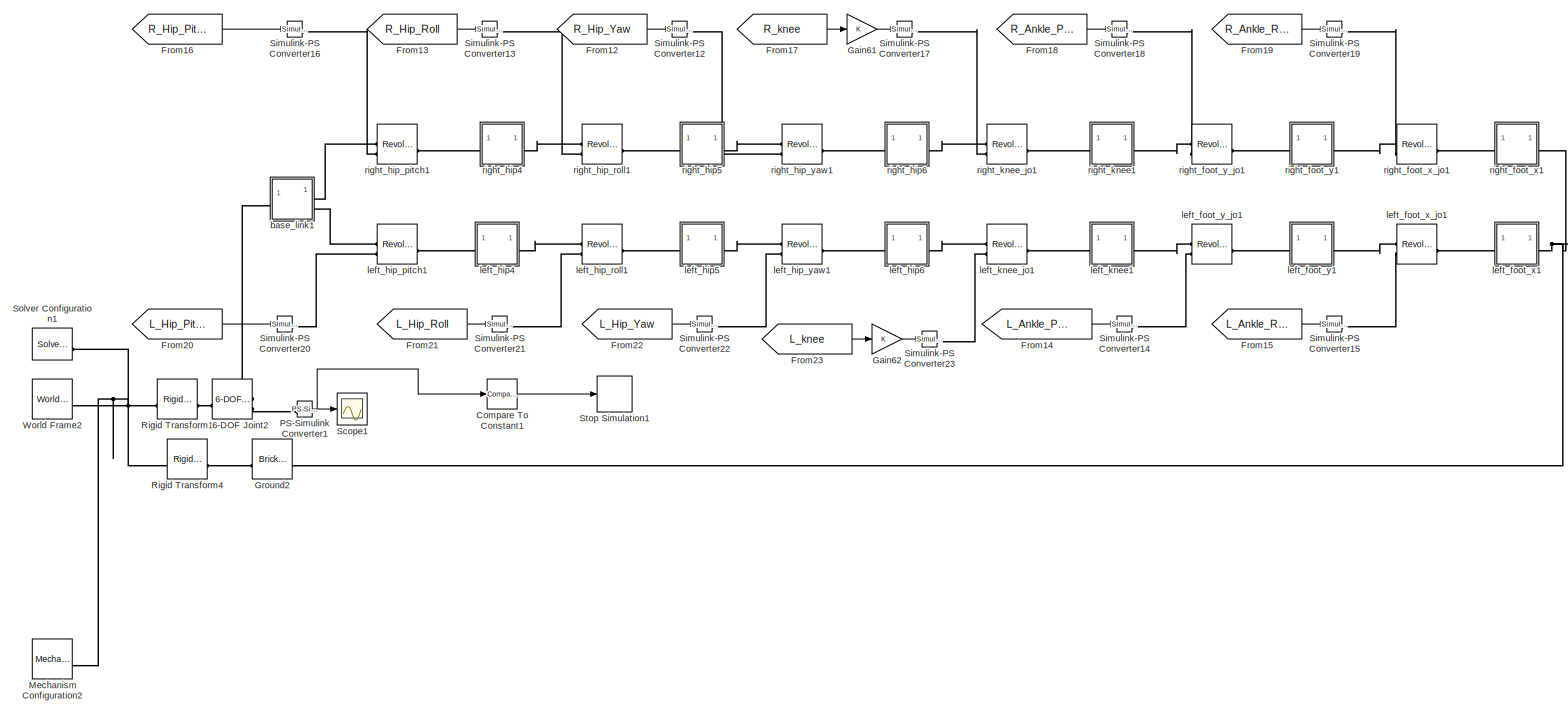
[diagram: root canvas - part 1/6, top left region]
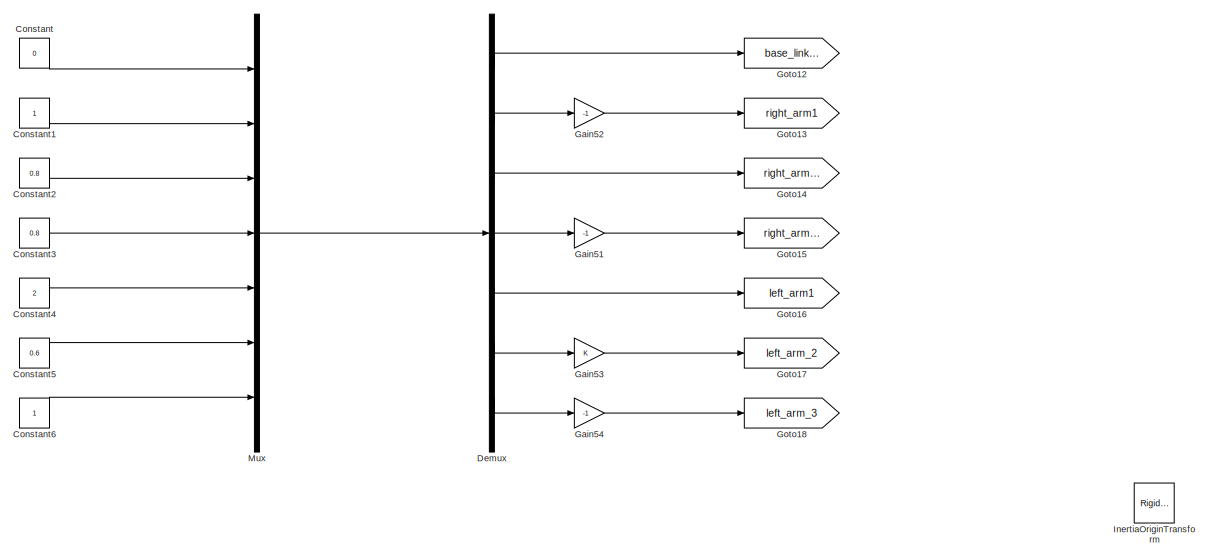
[diagram: root canvas - part 2/6, middle left region]
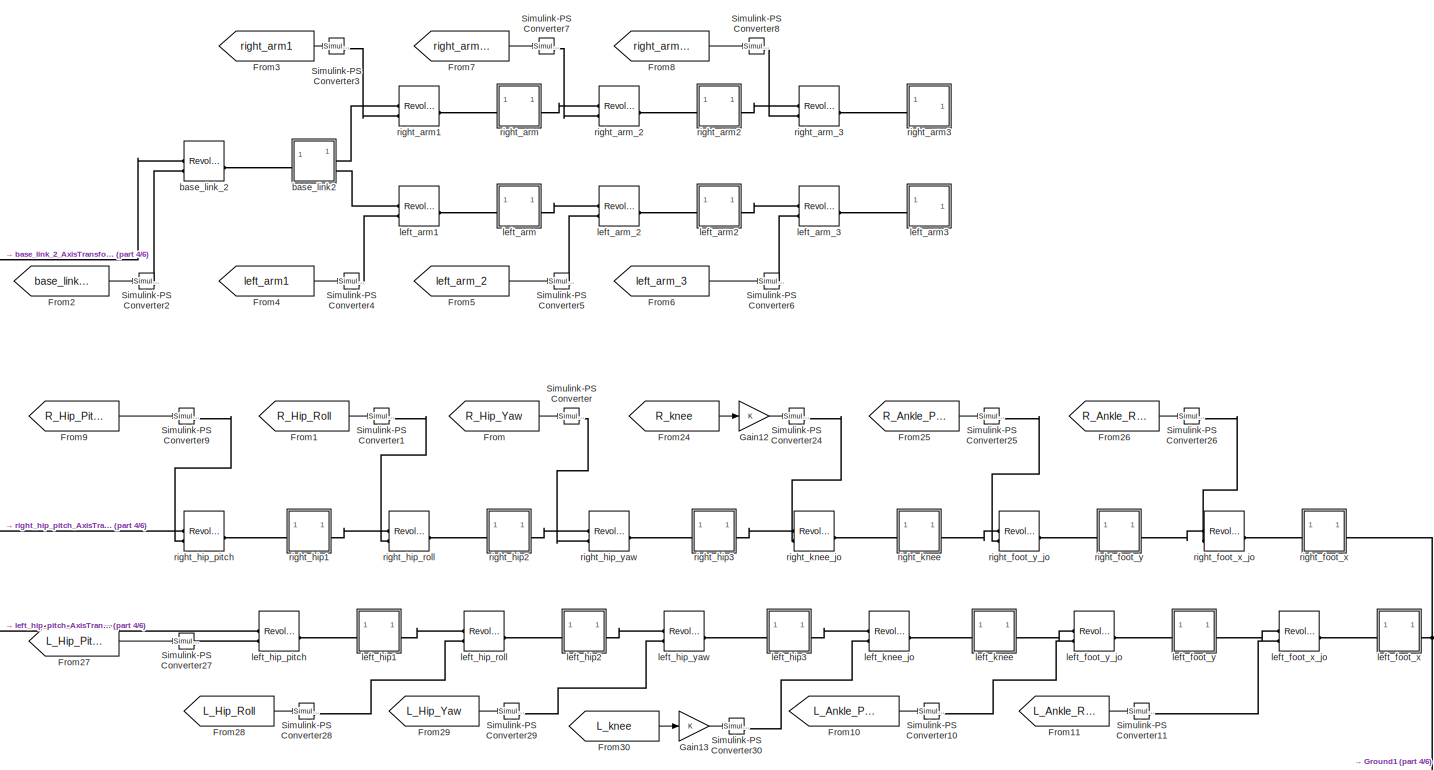
[diagram: root canvas - part 3/6, bottom right region]
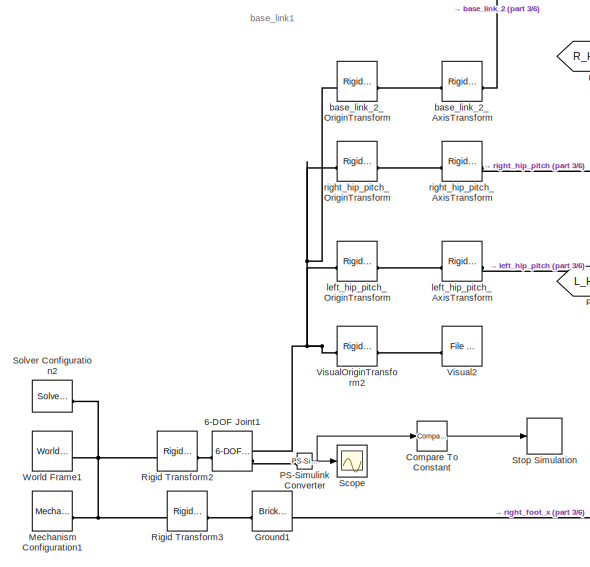
[diagram: root canvas - part 4/6, bottom center region]
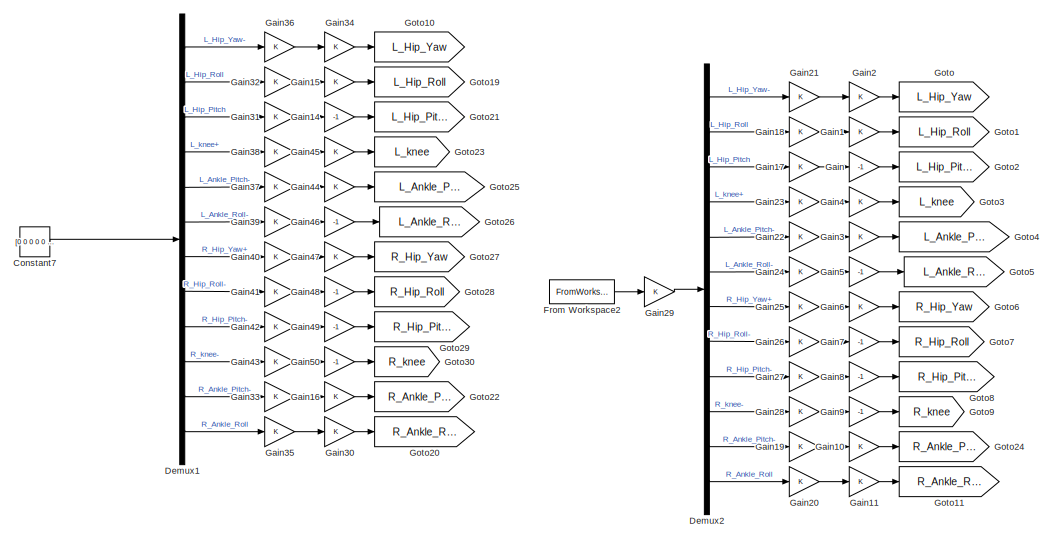
[diagram: root canvas - part 5/6, bottom left region]
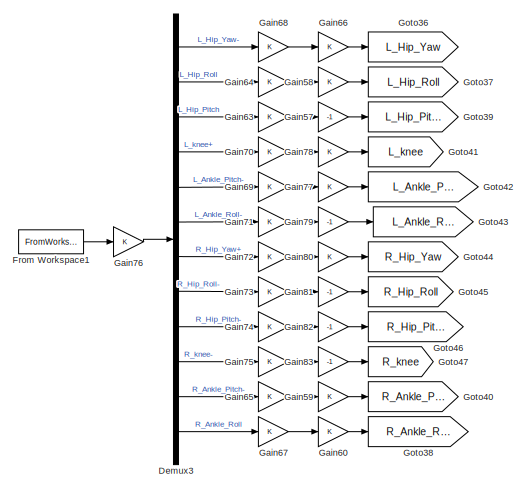
[diagram: root canvas - part 6/6, bottom left region]
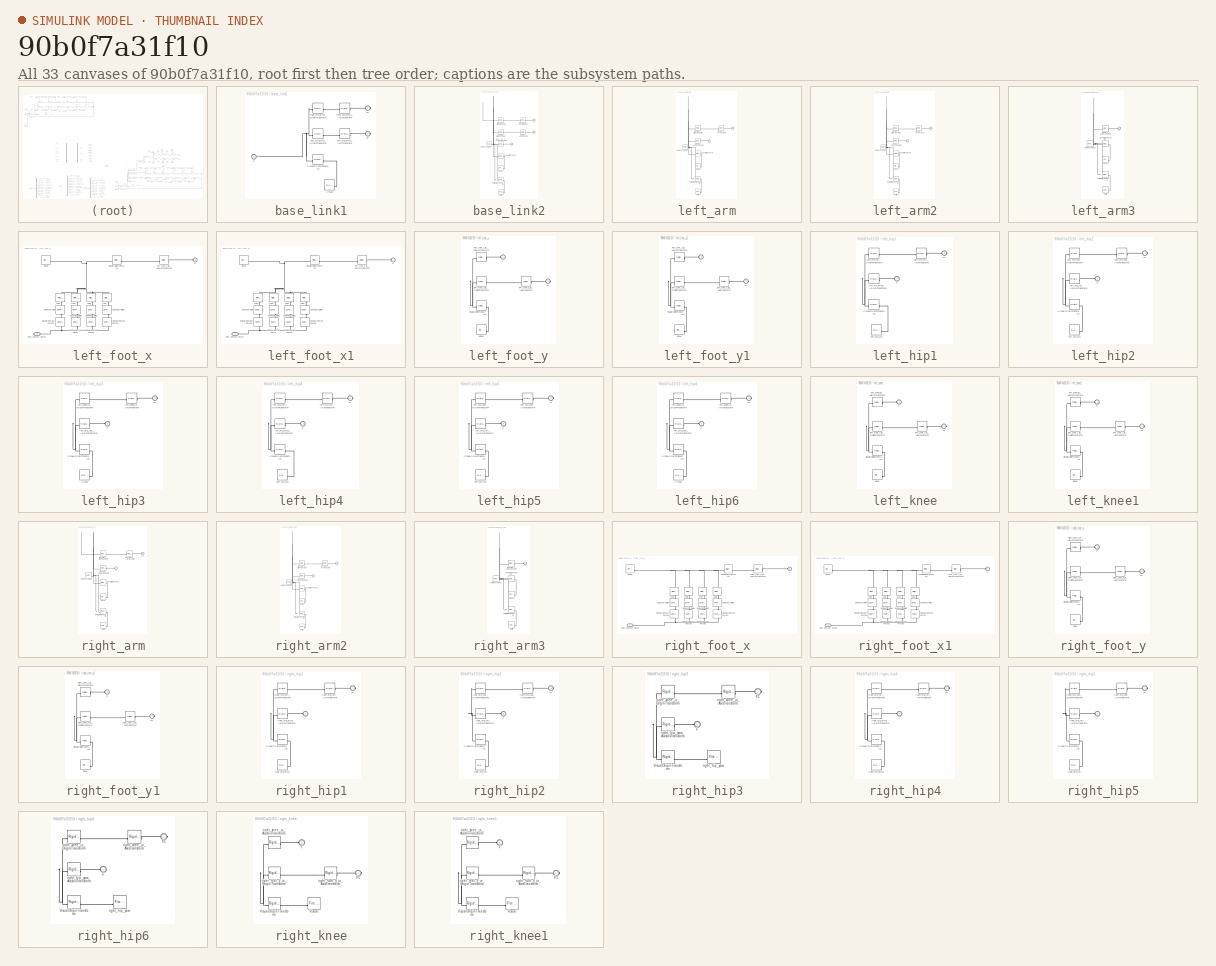
[diagram: thumbnail index - all 33 canvases of the model, root first then tree order]
MODEL slx_90b0f7a31f10
KIND model
CONFIG AbsTol = auto
CONFIG EnableMultiTasking = off
CONFIG FixedStep = auto
CONFIG MaxStep = auto
CONFIG MinStep = auto
CONFIG RelTol = 1e-3
CONFIG SampleTimeConstraint = Unconstrained
CONFIG SolverName = VariableStepAuto
CONFIG StartTime = 0.0
CONFIG StopTime = 10.0
BLOCK [Reference] 6-DOF Joint1  REF=sm_lib/Joints/6-DOF Joint
  SourceBlock = sm_lib/Joints/6-DOF Joint
  SourceType = 6-DOF Joint
BLOCK [Reference] 6-DOF Joint2  REF=sm_lib/Joints/6-DOF Joint
  Commented = on
  SourceBlock = sm_lib/Joints/6-DOF Joint
  SourceType = 6-DOF Joint
BLOCK [Reference] Compare To Constant  REF=simulink/Logic and Bit
Operations/Compare
To Constant
  SourceBlock = simulink/Logic and Bit\nOperations/Compare\nTo Constant
  SourceType = Compare To Constant
BLOCK [Reference] Compare To Constant1  REF=simulink/Logic and Bit
Operations/Compare
To Constant
  Commented = on
  SourceBlock = simulink/Logic and Bit\nOperations/Compare\nTo Constant
  SourceType = Compare To Constant
BLOCK [Constant] Constant
  Value = 0
BLOCK [Constant] Constant1
BLOCK [Constant] Constant2
  Value = 0.8
BLOCK [Constant] Constant3
  Value = 0.8
BLOCK [Constant] Constant4
  Value = 2
BLOCK [Constant] Constant5
  Value = 0.6
BLOCK [Constant] Constant6
BLOCK [Constant] Constant7
  Value = [0 0 0 0 0 0 0 0 0 0 0 0]
  VectorParams1D = off
BLOCK [Demux] Demux
  Outputs = 7
BLOCK [Demux] Demux1
  Outputs = 12
BLOCK [Demux] Demux2
  Commented = on
  Outputs = 12
BLOCK [Demux] Demux3
  Outputs = 12
BLOCK [From] From
  GotoTag = R_Hip_Yaw
BLOCK [FromWorkspace] From Workspace1
  VariableName = q
BLOCK [FromWorkspace] From Workspace2
  Commented = on
  VariableName = q
BLOCK [From] From1
  GotoTag = R_Hip_Roll
BLOCK [From] From10
  GotoTag = L_Ankle_Pitch
BLOCK [From] From11
  GotoTag = L_Ankle_Roll
BLOCK [From] From12
  Commented = on
  GotoTag = R_Hip_Yaw
BLOCK [From] From13
  Commented = on
  GotoTag = R_Hip_Roll
BLOCK [From] From14
  Commented = on
  GotoTag = L_Ankle_Pitch
BLOCK [From] From15
  Commented = on
  GotoTag = L_Ankle_Roll
BLOCK [From] From16
  Commented = on
  GotoTag = R_Hip_Pitch
BLOCK [From] From17
  Commented = on
  GotoTag = R_knee
BLOCK [From] From18
  Commented = on
  GotoTag = R_Ankle_Pitch
BLOCK [From] From19
  Commented = on
  GotoTag = R_Ankle_Roll
BLOCK [From] From2
  GotoTag = base_link_2
BLOCK [From] From20
  Commented = on
  GotoTag = L_Hip_Pitch
BLOCK [From] From21
  Commented = on
  GotoTag = L_Hip_Roll
BLOCK [From] From22
  Commented = on
  GotoTag = L_Hip_Yaw
BLOCK [From] From23
  Commented = on
  GotoTag = L_knee
BLOCK [From] From24
  GotoTag = R_knee
BLOCK [From] From25
  GotoTag = R_Ankle_Pitch
BLOCK [From] From26
  GotoTag = R_Ankle_Roll
BLOCK [From] From27
  GotoTag = L_Hip_Pitch
BLOCK [From] From28
  GotoTag = L_Hip_Roll
BLOCK [From] From29
  GotoTag = L_Hip_Yaw
BLOCK [From] From3
  GotoTag = right_arm1
BLOCK [From] From30
  GotoTag = L_knee
BLOCK [From] From4
  GotoTag = left_arm1
  TagVisibility = global
BLOCK [From] From5
  GotoTag = left_arm_2
BLOCK [From] From6
  GotoTag = left_arm_3
BLOCK [From] From7
  GotoTag = right_arm_2
BLOCK [From] From8
  GotoTag = right_arm_3
BLOCK [From] From9
  GotoTag = R_Hip_Pitch
BLOCK [Gain] Gain
  Commented = on
  Gain = -1
BLOCK [Gain] Gain1
  Commented = on
BLOCK [Gain] Gain10
  Commented = on
BLOCK [Gain] Gain11
  Commented = on
BLOCK [Gain] Gain12
BLOCK [Gain] Gain13
BLOCK [Gain] Gain14
  Gain = -1
BLOCK [Gain] Gain15
BLOCK [Gain] Gain16
BLOCK [Gain] Gain17
  Commented = on
BLOCK [Gain] Gain18
  Commented = on
BLOCK [Gain] Gain19
  Commented = on
BLOCK [Gain] Gain2
  Commented = on
BLOCK [Gain] Gain20
  Commented = on
BLOCK [Gain] Gain21
  Commented = on
BLOCK [Gain] Gain22
  Commented = on
BLOCK [Gain] Gain23
  Commented = on
BLOCK [Gain] Gain24
  Commented = on
BLOCK [Gain] Gain25
  Commented = on
BLOCK [Gain] Gain26
  Commented = on
BLOCK [Gain] Gain27
  Commented = on
BLOCK [Gain] Gain28
  Commented = on
BLOCK [Gain] Gain29
  Commented = on
BLOCK [Gain] Gain3
  Commented = on
BLOCK [Gain] Gain30
BLOCK [Gain] Gain31
BLOCK [Gain] Gain32
BLOCK [Gain] Gain33
BLOCK [Gain] Gain34
BLOCK [Gain] Gain35
BLOCK [Gain] Gain36
BLOCK [Gain] Gain37
BLOCK [Gain] Gain38
BLOCK [Gain] Gain39
BLOCK [Gain] Gain4
  Commented = on
BLOCK [Gain] Gain40
BLOCK [Gain] Gain41
BLOCK [Gain] Gain42
BLOCK [Gain] Gain43
BLOCK [Gain] Gain44
BLOCK [Gain] Gain45
BLOCK [Gain] Gain46
  Gain = -1
BLOCK [Gain] Gain47
BLOCK [Gain] Gain48
  Gain = -1
BLOCK [Gain] Gain49
  Gain = -1
BLOCK [Gain] Gain5
  Commented = on
  Gain = -1
BLOCK [Gain] Gain50
  Gain = -1
BLOCK [Gain] Gain51
  Gain = -1
BLOCK [Gain] Gain52
  Gain = -1
BLOCK [Gain] Gain53
BLOCK [Gain] Gain54
  Gain = -1
BLOCK [Gain] Gain57
  Gain = -1
BLOCK [Gain] Gain58
BLOCK [Gain] Gain59
BLOCK [Gain] Gain6
  Commented = on
BLOCK [Gain] Gain60
BLOCK [Gain] Gain61
  Commented = on
BLOCK [Gain] Gain62
  Commented = on
BLOCK [Gain] Gain63
BLOCK [Gain] Gain64
BLOCK [Gain] Gain65
BLOCK [Gain] Gain66
BLOCK [Gain] Gain67
BLOCK [Gain] Gain68
BLOCK [Gain] Gain69
BLOCK [Gain] Gain7
  Commented = on
  Gain = -1
BLOCK [Gain] Gain70
BLOCK [Gain] Gain71
BLOCK [Gain] Gain72
BLOCK [Gain] Gain73
BLOCK [Gain] Gain74
BLOCK [Gain] Gain75
BLOCK [Gain] Gain76
BLOCK [Gain] Gain77
BLOCK [Gain] Gain78
BLOCK [Gain] Gain79
  Gain = -1
BLOCK [Gain] Gain8
  Commented = on
  Gain = -1
BLOCK [Gain] Gain80
BLOCK [Gain] Gain81
  Gain = -1
BLOCK [Gain] Gain82
  Gain = -1
BLOCK [Gain] Gain83
  Gain = -1
BLOCK [Gain] Gain9
  Commented = on
  Gain = -1
BLOCK [Goto] Goto
  Commented = on
  GotoTag = L_Hip_Yaw
BLOCK [Goto] Goto1
  Commented = on
  GotoTag = L_Hip_Roll
BLOCK [Goto] Goto10
  GotoTag = L_Hip_Yaw
BLOCK [Goto] Goto11
  Commented = on
  GotoTag = R_Ankle_Roll
BLOCK [Goto] Goto12
  GotoTag = base_link_2
BLOCK [Goto] Goto13
  GotoTag = right_arm1
BLOCK [Goto] Goto14
  GotoTag = right_arm_2
BLOCK [Goto] Goto15
  GotoTag = right_arm_3
BLOCK [Goto] Goto16
  GotoTag = left_arm1
  TagVisibility = global
BLOCK [Goto] Goto17
  GotoTag = left_arm_2
BLOCK [Goto] Goto18
  GotoTag = left_arm_3
BLOCK [Goto] Goto19
  GotoTag = L_Hip_Roll
BLOCK [Goto] Goto2
  Commented = on
  GotoTag = L_Hip_Pitch
BLOCK [Goto] Goto20
  GotoTag = R_Ankle_Roll
BLOCK [Goto] Goto21
  GotoTag = L_Hip_Pitch
BLOCK [Goto] Goto22
  GotoTag = R_Ankle_Pitch
BLOCK [Goto] Goto23
  GotoTag = L_knee
BLOCK [Goto] Goto24
  Commented = on
  GotoTag = R_Ankle_Pitch
BLOCK [Goto] Goto25
  GotoTag = L_Ankle_Pitch
BLOCK [Goto] Goto26
  GotoTag = L_Ankle_Roll
BLOCK [Goto] Goto27
  GotoTag = R_Hip_Yaw
BLOCK [Goto] Goto28
  GotoTag = R_Hip_Roll
BLOCK [Goto] Goto29
  GotoTag = R_Hip_Pitch
BLOCK [Goto] Goto3
  Commented = on
  GotoTag = L_knee
BLOCK [Goto] Goto30
  GotoTag = R_knee
BLOCK [Goto] Goto36
  GotoTag = L_Hip_Yaw
BLOCK [Goto] Goto37
  GotoTag = L_Hip_Roll
BLOCK [Goto] Goto38
  GotoTag = R_Ankle_Roll
BLOCK [Goto] Goto39
  GotoTag = L_Hip_Pitch
BLOCK [Goto] Goto4
  Commented = on
  GotoTag = L_Ankle_Pitch
BLOCK [Goto] Goto40
  GotoTag = R_Ankle_Pitch
BLOCK [Goto] Goto41
  GotoTag = L_knee
BLOCK [Goto] Goto42
  GotoTag = L_Ankle_Pitch
BLOCK [Goto] Goto43
  GotoTag = L_Ankle_Roll
BLOCK [Goto] Goto44
  GotoTag = R_Hip_Yaw
BLOCK [Goto] Goto45
  GotoTag = R_Hip_Roll
BLOCK [Goto] Goto46
  GotoTag = R_Hip_Pitch
BLOCK [Goto] Goto47
  GotoTag = R_knee
BLOCK [Goto] Goto5
  Commented = on
  GotoTag = L_Ankle_Roll
BLOCK [Goto] Goto6
  Commented = on
  GotoTag = R_Hip_Yaw
BLOCK [Goto] Goto7
  Commented = on
  GotoTag = R_Hip_Roll
BLOCK [Goto] Goto8
  Commented = on
  GotoTag = R_Hip_Pitch
BLOCK [Goto] Goto9
  Commented = on
  GotoTag = R_knee
BLOCK [Reference] Ground1  REF=sm_lib/Body Elements/Brick Solid
  NameLocation = top
  SourceBlock = sm_lib/Body Elements/Brick Solid
  SourceType = Brick Solid
BLOCK [Reference] Ground2  REF=sm_lib/Body Elements/Brick Solid
  Commented = on
  NameLocation = top
  SourceBlock = sm_lib/Body Elements/Brick Solid
  SourceType = Brick Solid
BLOCK [Reference] InertiaOriginTransform  REF=sm_lib/Frames and
Transforms/Rigid
Transform
  Commented = on
  SourceBlock = sm_lib/Frames and\nTransforms/Rigid\nTransform
  SourceType = Rigid\nTransform
BLOCK [Reference] Mechanism Configuration1  REF=sm_lib/Utilities/Mechanism
Configuration
  SourceBlock = sm_lib/Utilities/Mechanism\nConfiguration
  SourceType = Mechanism\nConfiguration
BLOCK [Reference] Mechanism Configuration2  REF=sm_lib/Utilities/Mechanism
Configuration
  Commented = on
  SourceBlock = sm_lib/Utilities/Mechanism\nConfiguration
  SourceType = Mechanism\nConfiguration
BLOCK [Mux] Mux
  DisplayOption = bar
  Inputs = 7
BLOCK [Reference] PS-Simulink Converter  REF=nesl_utility/PS-Simulink
Converter
  SourceBlock = nesl_utility/PS-Simulink\nConverter
  SourceType = PS-Simulink\nConverter
BLOCK [Reference] PS-Simulink Converter1  REF=nesl_utility/PS-Simulink
Converter
  Commented = on
  SourceBlock = nesl_utility/PS-Simulink\nConverter
  SourceType = PS-Simulink\nConverter
BLOCK [Reference] Rigid Transform1  REF=sm_lib/Frames and
Transforms/Rigid
Transform
  Commented = on
  SourceBlock = sm_lib/Frames and\nTransforms/Rigid\nTransform
  SourceType = Rigid\nTransform
BLOCK [Reference] Rigid Transform2  REF=sm_lib/Frames and
Transforms/Rigid
Transform
  SourceBlock = sm_lib/Frames and\nTransforms/Rigid\nTransform
  SourceType = Rigid\nTransform
BLOCK [Reference] Rigid Transform3  REF=sm_lib/Frames and
Transforms/Rigid
Transform
  SourceBlock = sm_lib/Frames and\nTransforms/Rigid\nTransform
  SourceType = Rigid\nTransform
BLOCK [Reference] Rigid Transform4  REF=sm_lib/Frames and
Transforms/Rigid
Transform
  Commented = on
  SourceBlock = sm_lib/Frames and\nTransforms/Rigid\nTransform
  SourceType = Rigid\nTransform
BLOCK [Scope] Scope
  Floating = off
  NumInputPorts = 1
  ScopeSpecificationString = Simulink.scopes.TimeScopeBlockCfg('CurrentConfiguration', extmgr.ConfigurationSet(extmgr.Configuration('Core','General UI',true),extmgr.Configuration('Core','Source UI',true),extmgr.Configuration('Sources','WiredSimulink',true),extmgr.Configuration('Visuals','Time Domain',true,'SerializedDisplays',{struct('MinYLimReal','-0.04674','MaxYLimReal','0.00743','YLabelReal','','MinYLimMag','0.00000','MaxY...<+1442ch>
BLOCK [Scope] Scope1
  Commented = on
  Floating = off
  NumInputPorts = 1
  ScopeSpecificationString = Simulink.scopes.TimeScopeBlockCfg('CurrentConfiguration', extmgr.ConfigurationSet(extmgr.Configuration('Core','General UI',true),extmgr.Configuration('Core','Source UI',true),extmgr.Configuration('Sources','WiredSimulink',true,'DataLoggingVariableName','ScopeData1'),extmgr.Configuration('Visuals','Time Domain',true,'SerializedDisplays',{struct('MinYLimReal','-0.04674','MaxYLimReal','0.00743','YLab...<+1481ch>
BLOCK [Reference] Simulink-PS Converter  REF=nesl_utility/Simulink-PS
Converter
  SourceBlock = nesl_utility/Simulink-PS\nConverter
  SourceType = Simulink-PS\nConverter
BLOCK [Reference] Simulink-PS Converter1  REF=nesl_utility/Simulink-PS
Converter
  SourceBlock = nesl_utility/Simulink-PS\nConverter
  SourceType = Simulink-PS\nConverter
BLOCK [Reference] Simulink-PS Converter10  REF=nesl_utility/Simulink-PS
Converter
  SourceBlock = nesl_utility/Simulink-PS\nConverter
  SourceType = Simulink-PS\nConverter
BLOCK [Reference] Simulink-PS Converter11  REF=nesl_utility/Simulink-PS
Converter
  SourceBlock = nesl_utility/Simulink-PS\nConverter
  SourceType = Simulink-PS\nConverter
BLOCK [Reference] Simulink-PS Converter12  REF=nesl_utility/Simulink-PS
Converter
  Commented = on
  SourceBlock = nesl_utility/Simulink-PS\nConverter
  SourceType = Simulink-PS\nConverter
BLOCK [Reference] Simulink-PS Converter13  REF=nesl_utility/Simulink-PS
Converter
  Commented = on
  SourceBlock = nesl_utility/Simulink-PS\nConverter
  SourceType = Simulink-PS\nConverter
BLOCK [Reference] Simulink-PS Converter14  REF=nesl_utility/Simulink-PS
Converter
  Commented = on
  SourceBlock = nesl_utility/Simulink-PS\nConverter
  SourceType = Simulink-PS\nConverter
BLOCK [Reference] Simulink-PS Converter15  REF=nesl_utility/Simulink-PS
Converter
  Commented = on
  SourceBlock = nesl_utility/Simulink-PS\nConverter
  SourceType = Simulink-PS\nConverter
BLOCK [Reference] Simulink-PS Converter16  REF=nesl_utility/Simulink-PS
Converter
  Commented = on
  SourceBlock = nesl_utility/Simulink-PS\nConverter
  SourceType = Simulink-PS\nConverter
BLOCK [Reference] Simulink-PS Converter17  REF=nesl_utility/Simulink-PS
Converter
  Commented = on
  SourceBlock = nesl_utility/Simulink-PS\nConverter
  SourceType = Simulink-PS\nConverter
BLOCK [Reference] Simulink-PS Converter18  REF=nesl_utility/Simulink-PS
Converter
  Commented = on
  SourceBlock = nesl_utility/Simulink-PS\nConverter
  SourceType = Simulink-PS\nConverter
BLOCK [Reference] Simulink-PS Converter19  REF=nesl_utility/Simulink-PS
Converter
  Commented = on
  SourceBlock = nesl_utility/Simulink-PS\nConverter
  SourceType = Simulink-PS\nConverter
BLOCK [Reference] Simulink-PS Converter2  REF=nesl_utility/Simulink-PS
Converter
  SourceBlock = nesl_utility/Simulink-PS\nConverter
  SourceType = Simulink-PS\nConverter
BLOCK [Reference] Simulink-PS Converter20  REF=nesl_utility/Simulink-PS
Converter
  Commented = on
  SourceBlock = nesl_utility/Simulink-PS\nConverter
  SourceType = Simulink-PS\nConverter
BLOCK [Reference] Simulink-PS Converter21  REF=nesl_utility/Simulink-PS
Converter
  Commented = on
  SourceBlock = nesl_utility/Simulink-PS\nConverter
  SourceType = Simulink-PS\nConverter
BLOCK [Reference] Simulink-PS Converter22  REF=nesl_utility/Simulink-PS
Converter
  Commented = on
  SourceBlock = nesl_utility/Simulink-PS\nConverter
  SourceType = Simulink-PS\nConverter
BLOCK [Reference] Simulink-PS Converter23  REF=nesl_utility/Simulink-PS
Converter
  Commented = on
  SourceBlock = nesl_utility/Simulink-PS\nConverter
  SourceType = Simulink-PS\nConverter
BLOCK [Reference] Simulink-PS Converter24  REF=nesl_utility/Simulink-PS
Converter
  SourceBlock = nesl_utility/Simulink-PS\nConverter
  SourceType = Simulink-PS\nConverter
BLOCK [Reference] Simulink-PS Converter25  REF=nesl_utility/Simulink-PS
Converter
  SourceBlock = nesl_utility/Simulink-PS\nConverter
  SourceType = Simulink-PS\nConverter
BLOCK [Reference] Simulink-PS Converter26  REF=nesl_utility/Simulink-PS
Converter
  SourceBlock = nesl_utility/Simulink-PS\nConverter
  SourceType = Simulink-PS\nConverter
BLOCK [Reference] Simulink-PS Converter27  REF=nesl_utility/Simulink-PS
Converter
  SourceBlock = nesl_utility/Simulink-PS\nConverter
  SourceType = Simulink-PS\nConverter
BLOCK [Reference] Simulink-PS Converter28  REF=nesl_utility/Simulink-PS
Converter
  SourceBlock = nesl_utility/Simulink-PS\nConverter
  SourceType = Simulink-PS\nConverter
BLOCK [Reference] Simulink-PS Converter29  REF=nesl_utility/Simulink-PS
Converter
  SourceBlock = nesl_utility/Simulink-PS\nConverter
  SourceType = Simulink-PS\nConverter
BLOCK [Reference] Simulink-PS Converter3  REF=nesl_utility/Simulink-PS
Converter
  SourceBlock = nesl_utility/Simulink-PS\nConverter
  SourceType = Simulink-PS\nConverter
BLOCK [Reference] Simulink-PS Converter30  REF=nesl_utility/Simulink-PS
Converter
  SourceBlock = nesl_utility/Simulink-PS\nConverter
  SourceType = Simulink-PS\nConverter
BLOCK [Reference] Simulink-PS Converter4  REF=nesl_utility/Simulink-PS
Converter
  SourceBlock = nesl_utility/Simulink-PS\nConverter
  SourceType = Simulink-PS\nConverter
BLOCK [Reference] Simulink-PS Converter5  REF=nesl_utility/Simulink-PS
Converter
  SourceBlock = nesl_utility/Simulink-PS\nConverter
  SourceType = Simulink-PS\nConverter
BLOCK [Reference] Simulink-PS Converter6  REF=nesl_utility/Simulink-PS
Converter
  SourceBlock = nesl_utility/Simulink-PS\nConverter
  SourceType = Simulink-PS\nConverter
BLOCK [Reference] Simulink-PS Converter7  REF=nesl_utility/Simulink-PS
Converter
  SourceBlock = nesl_utility/Simulink-PS\nConverter
  SourceType = Simulink-PS\nConverter
BLOCK [Reference] Simulink-PS Converter8  REF=nesl_utility/Simulink-PS
Converter
  SourceBlock = nesl_utility/Simulink-PS\nConverter
  SourceType = Simulink-PS\nConverter
BLOCK [Reference] Simulink-PS Converter9  REF=nesl_utility/Simulink-PS
Converter
  SourceBlock = nesl_utility/Simulink-PS\nConverter
  SourceType = Simulink-PS\nConverter
BLOCK [Reference] Solver Configuration1  REF=nesl_utility/Solver
Configuration
  Commented = on
  SourceBlock = nesl_utility/Solver\nConfiguration
  SourceType = Solver\nConfiguration
BLOCK [Reference] Solver Configuration2  REF=nesl_utility/Solver
Configuration
  SourceBlock = nesl_utility/Solver\nConfiguration
  SourceType = Solver\nConfiguration
BLOCK [Stop] Stop Simulation
BLOCK [Stop] Stop Simulation1
  Commented = on
BLOCK [Reference] Visual2  REF=sm_lib/Body Elements/File Solid
  NameLocation = top
  SourceBlock = sm_lib/Body Elements/File Solid
  SourceType = File Solid
BLOCK [Reference] VisualOriginTransform2  REF=sm_lib/Frames and
Transforms/Rigid
Transform
  SourceBlock = sm_lib/Frames and\nTransforms/Rigid\nTransform
  SourceType = Rigid\nTransform
BLOCK [Reference] World Frame1  REF=sm_lib/Frames and
Transforms/World Frame
  SourceBlock = sm_lib/Frames and\nTransforms/World Frame
  SourceType = World Frame
BLOCK [Reference] World Frame2  REF=sm_lib/Frames and
Transforms/World Frame
  Commented = on
  SourceBlock = sm_lib/Frames and\nTransforms/World Frame
  SourceType = World Frame
BLOCK [SubSystem] base_link1
  Commented = on
BLOCK [PMIOPort] base_link1/F
  Side = Left
BLOCK [PMIOPort] base_link1/F1
  Port = 3
  Side = Right
BLOCK [PMIOPort] base_link1/F2
  Port = 2
  Side = Right
BLOCK [Reference] base_link1/Visual  REF=sm_lib/Body Elements/File Solid
  SourceBlock = sm_lib/Body Elements/File Solid
  SourceType = File Solid
BLOCK [Reference] base_link1/VisualOriginTransform  REF=sm_lib/Frames and
Transforms/Rigid
Transform
  SourceBlock = sm_lib/Frames and\nTransforms/Rigid\nTransform
  SourceType = Rigid\nTransform
BLOCK [Reference] base_link1/left_hip_pitch_AxisTransform  REF=sm_lib/Frames and
Transforms/Rigid
Transform
  SourceBlock = sm_lib/Frames and\nTransforms/Rigid\nTransform
  SourceType = Rigid\nTransform
BLOCK [Reference] base_link1/left_hip_pitch_OriginTransform  REF=sm_lib/Frames and
Transforms/Rigid
Transform
  SourceBlock = sm_lib/Frames and\nTransforms/Rigid\nTransform
  SourceType = Rigid\nTransform
BLOCK [Reference] base_link1/right_hip_pitch_AxisTransform  REF=sm_lib/Frames and
Transforms/Rigid
Transform
  SourceBlock = sm_lib/Frames and\nTransforms/Rigid\nTransform
  SourceType = Rigid\nTransform
BLOCK [Reference] base_link1/right_hip_pitch_OriginTransform  REF=sm_lib/Frames and
Transforms/Rigid
Transform
  SourceBlock = sm_lib/Frames and\nTransforms/Rigid\nTransform
  SourceType = Rigid\nTransform
BLOCK [SubSystem] base_link2
BLOCK [PMIOPort] base_link2/F
  Side = Left
BLOCK [PMIOPort] base_link2/F1
  Port = 3
  Side = Right
BLOCK [PMIOPort] base_link2/F2
  Port = 2
  Side = Right
BLOCK [Reference] base_link2/Inertia  REF=sm_lib/Body Elements/Inertia
  SourceBlock = sm_lib/Body Elements/Inertia
  SourceType = Inertia
BLOCK [Reference] base_link2/InertiaOriginTransform  REF=sm_lib/Frames and
Transforms/Rigid
Transform
  SourceBlock = sm_lib/Frames and\nTransforms/Rigid\nTransform
  SourceType = Rigid\nTransform
BLOCK [Reference] base_link2/ReferenceFrame  REF=sm_lib/Frames and
Transforms/Reference
Frame
  SourceBlock = sm_lib/Frames and\nTransforms/Reference\nFrame
  SourceType = Reference\nFrame
BLOCK [Reference] base_link2/Visual  REF=sm_lib/Body Elements/File Solid
  SourceBlock = sm_lib/Body Elements/File Solid
  SourceType = File Solid
BLOCK [Reference] base_link2/VisualOriginTransform  REF=sm_lib/Frames and
Transforms/Rigid
Transform
  SourceBlock = sm_lib/Frames and\nTransforms/Rigid\nTransform
  SourceType = Rigid\nTransform
BLOCK [Reference] base_link2/base_link_2_AxisInvTransform  REF=sm_lib/Frames and
Transforms/Rigid
Transform
  SourceBlock = sm_lib/Frames and\nTransforms/Rigid\nTransform
  SourceType = Rigid\nTransform
BLOCK [Reference] base_link2/left_arm1_AxisTransform  REF=sm_lib/Frames and
Transforms/Rigid
Transform
  SourceBlock = sm_lib/Frames and\nTransforms/Rigid\nTransform
  SourceType = Rigid\nTransform
BLOCK [Reference] base_link2/left_arm1_OriginTransform  REF=sm_lib/Frames and
Transforms/Rigid
Transform
  SourceBlock = sm_lib/Frames and\nTransforms/Rigid\nTransform
  SourceType = Rigid\nTransform
BLOCK [Reference] base_link2/right_arm1_AxisTransform  REF=sm_lib/Frames and
Transforms/Rigid
Transform
  SourceBlock = sm_lib/Frames and\nTransforms/Rigid\nTransform
  SourceType = Rigid\nTransform
BLOCK [Reference] base_link2/right_arm1_OriginTransform  REF=sm_lib/Frames and
Transforms/Rigid
Transform
  SourceBlock = sm_lib/Frames and\nTransforms/Rigid\nTransform
  SourceType = Rigid\nTransform
BLOCK [Reference] base_link_2  REF=sm_lib/Joints/Revolute Joint
  SourceBlock = sm_lib/Joints/Revolute Joint
  SourceType = Revolute Joint
BLOCK [Reference] base_link_2_AxisTransform  REF=sm_lib/Frames and
Transforms/Rigid
Transform
  SourceBlock = sm_lib/Frames and\nTransforms/Rigid\nTransform
  SourceType = Rigid\nTransform
BLOCK [Reference] base_link_2_OriginTransform  REF=sm_lib/Frames and
Transforms/Rigid
Transform
  SourceBlock = sm_lib/Frames and\nTransforms/Rigid\nTransform
  SourceType = Rigid\nTransform
BLOCK [SubSystem] left_arm
BLOCK [PMIOPort] left_arm/F
  Side = Left
BLOCK [PMIOPort] left_arm/F1
  Port = 2
  Side = Right
BLOCK [Reference] left_arm/Inertia  REF=sm_lib/Body Elements/Inertia
  SourceBlock = sm_lib/Body Elements/Inertia
  SourceType = Inertia
BLOCK [Reference] left_arm/InertiaOriginTransform  REF=sm_lib/Frames and
Transforms/Rigid
Transform
  SourceBlock = sm_lib/Frames and\nTransforms/Rigid\nTransform
  SourceType = Rigid\nTransform
BLOCK [Reference] left_arm/ReferenceFrame  REF=sm_lib/Frames and
Transforms/Reference
Frame
  SourceBlock = sm_lib/Frames and\nTransforms/Reference\nFrame
  SourceType = Reference\nFrame
BLOCK [Reference] left_arm/Visual  REF=sm_lib/Body Elements/File Solid
  SourceBlock = sm_lib/Body Elements/File Solid
  SourceType = File Solid
BLOCK [Reference] left_arm/VisualOriginTransform  REF=sm_lib/Frames and
Transforms/Rigid
Transform
  SourceBlock = sm_lib/Frames and\nTransforms/Rigid\nTransform
  SourceType = Rigid\nTransform
BLOCK [Reference] left_arm/left_arm1_AxisInvTransform  REF=sm_lib/Frames and
Transforms/Rigid
Transform
  SourceBlock = sm_lib/Frames and\nTransforms/Rigid\nTransform
  SourceType = Rigid\nTransform
BLOCK [Reference] left_arm/left_arm_2_AxisTransform  REF=sm_lib/Frames and
Transforms/Rigid
Transform
  SourceBlock = sm_lib/Frames and\nTransforms/Rigid\nTransform
  SourceType = Rigid\nTransform
BLOCK [Reference] left_arm/left_arm_2_OriginTransform  REF=sm_lib/Frames and
Transforms/Rigid
Transform
  SourceBlock = sm_lib/Frames and\nTransforms/Rigid\nTransform
  SourceType = Rigid\nTransform
BLOCK [Reference] left_arm1  REF=sm_lib/Joints/Revolute Joint
  SourceBlock = sm_lib/Joints/Revolute Joint
  SourceType = Revolute Joint
BLOCK [SubSystem] left_arm2
BLOCK [PMIOPort] left_arm2/F
  Side = Left
BLOCK [PMIOPort] left_arm2/F1
  Port = 2
  Side = Right
BLOCK [Reference] left_arm2/Inertia  REF=sm_lib/Body Elements/Inertia
  SourceBlock = sm_lib/Body Elements/Inertia
  SourceType = Inertia
BLOCK [Reference] left_arm2/InertiaOriginTransform  REF=sm_lib/Frames and
Transforms/Rigid
Transform
  SourceBlock = sm_lib/Frames and\nTransforms/Rigid\nTransform
  SourceType = Rigid\nTransform
BLOCK [Reference] left_arm2/ReferenceFrame  REF=sm_lib/Frames and
Transforms/Reference
Frame
  SourceBlock = sm_lib/Frames and\nTransforms/Reference\nFrame
  SourceType = Reference\nFrame
BLOCK [Reference] left_arm2/Visual  REF=sm_lib/Body Elements/File Solid
  SourceBlock = sm_lib/Body Elements/File Solid
  SourceType = File Solid
BLOCK [Reference] left_arm2/VisualOriginTransform  REF=sm_lib/Frames and
Transforms/Rigid
Transform
  SourceBlock = sm_lib/Frames and\nTransforms/Rigid\nTransform
  SourceType = Rigid\nTransform
BLOCK [Reference] left_arm2/left_arm_2_AxisInvTransform  REF=sm_lib/Frames and
Transforms/Rigid
Transform
  SourceBlock = sm_lib/Frames and\nTransforms/Rigid\nTransform
  SourceType = Rigid\nTransform
BLOCK [Reference] left_arm2/left_arm_3_AxisTransform  REF=sm_lib/Frames and
Transforms/Rigid
Transform
  SourceBlock = sm_lib/Frames and\nTransforms/Rigid\nTransform
  SourceType = Rigid\nTransform
BLOCK [Reference] left_arm2/left_arm_3_OriginTransform  REF=sm_lib/Frames and
Transforms/Rigid
Transform
  SourceBlock = sm_lib/Frames and\nTransforms/Rigid\nTransform
  SourceType = Rigid\nTransform
BLOCK [SubSystem] left_arm3
BLOCK [PMIOPort] left_arm3/F
  Side = Left
BLOCK [Reference] left_arm3/Inertia  REF=sm_lib/Body Elements/Inertia
  SourceBlock = sm_lib/Body Elements/Inertia
  SourceType = Inertia
BLOCK [Reference] left_arm3/InertiaOriginTransform  REF=sm_lib/Frames and
Transforms/Rigid
Transform
  SourceBlock = sm_lib/Frames and\nTransforms/Rigid\nTransform
  SourceType = Rigid\nTransform
BLOCK [Reference] left_arm3/ReferenceFrame  REF=sm_lib/Frames and
Transforms/Reference
Frame
  SourceBlock = sm_lib/Frames and\nTransforms/Reference\nFrame
  SourceType = Reference\nFrame
BLOCK [Reference] left_arm3/Visual  REF=sm_lib/Body Elements/File Solid
  SourceBlock = sm_lib/Body Elements/File Solid
  SourceType = File Solid
BLOCK [Reference] left_arm3/VisualOriginTransform  REF=sm_lib/Frames and
Transforms/Rigid
Transform
  SourceBlock = sm_lib/Frames and\nTransforms/Rigid\nTransform
  SourceType = Rigid\nTransform
BLOCK [Reference] left_arm3/left_arm_3_AxisInvTransform  REF=sm_lib/Frames and
Transforms/Rigid
Transform
  SourceBlock = sm_lib/Frames and\nTransforms/Rigid\nTransform
  SourceType = Rigid\nTransform
BLOCK [Reference] left_arm_2  REF=sm_lib/Joints/Revolute Joint
  SourceBlock = sm_lib/Joints/Revolute Joint
  SourceType = Revolute Joint
BLOCK [Reference] left_arm_3  REF=sm_lib/Joints/Revolute Joint
  SourceBlock = sm_lib/Joints/Revolute Joint
  SourceType = Revolute Joint
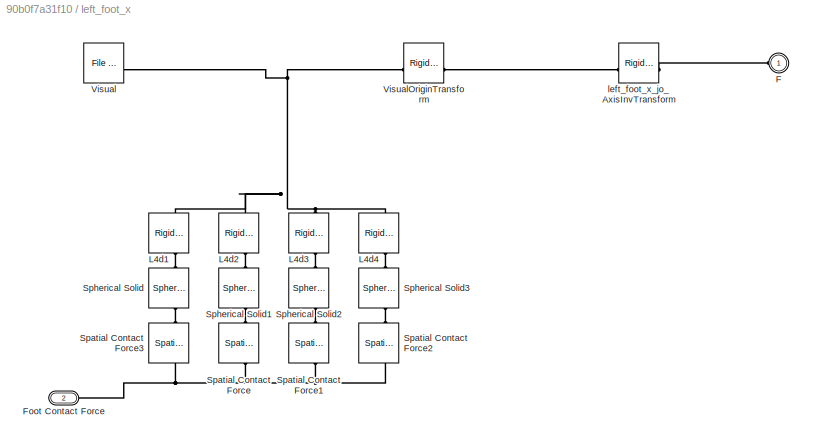
BLOCK [SubSystem] left_foot_x
BLOCK [PMIOPort] left_foot_x/F
  Side = Left
BLOCK [PMIOPort] left_foot_x/Foot Contact Force
  Port = 2
  Side = Right
BLOCK [Reference] left_foot_x/L4d1  REF=sm_lib/Frames and
Transforms/Rigid
Transform
  NameLocation = left
  SourceBlock = sm_lib/Frames and\nTransforms/Rigid\nTransform
  SourceType = Rigid\nTransform
BLOCK [Reference] left_foot_x/L4d2  REF=sm_lib/Frames and
Transforms/Rigid
Transform
  NameLocation = left
  SourceBlock = sm_lib/Frames and\nTransforms/Rigid\nTransform
  SourceType = Rigid\nTransform
BLOCK [Reference] left_foot_x/L4d3  REF=sm_lib/Frames and
Transforms/Rigid
Transform
  NameLocation = left
  SourceBlock = sm_lib/Frames and\nTransforms/Rigid\nTransform
  SourceType = Rigid\nTransform
BLOCK [Reference] left_foot_x/L4d4  REF=sm_lib/Frames and
Transforms/Rigid
Transform
  NameLocation = left
  SourceBlock = sm_lib/Frames and\nTransforms/Rigid\nTransform
  SourceType = Rigid\nTransform
BLOCK [Reference] left_foot_x/Spatial Contact Force  REF=sm_lib/Forces and
Torques/Spatial
Contact Force
  NameLocation = right
  SourceBlock = sm_lib/Forces and\nTorques/Spatial\nContact Force
  SourceType = Spatial\nContact Force
BLOCK [Reference] left_foot_x/Spatial Contact Force1  REF=sm_lib/Forces and
Torques/Spatial
Contact Force
  NameLocation = right
  SourceBlock = sm_lib/Forces and\nTorques/Spatial\nContact Force
  SourceType = Spatial\nContact Force
BLOCK [Reference] left_foot_x/Spatial Contact Force2  REF=sm_lib/Forces and
Torques/Spatial
Contact Force
  NameLocation = right
  SourceBlock = sm_lib/Forces and\nTorques/Spatial\nContact Force
  SourceType = Spatial\nContact Force
BLOCK [Reference] left_foot_x/Spatial Contact Force3  REF=sm_lib/Forces and
Torques/Spatial
Contact Force
  NameLocation = right
  SourceBlock = sm_lib/Forces and\nTorques/Spatial\nContact Force
  SourceType = Spatial\nContact Force
BLOCK [Reference] left_foot_x/Spherical Solid  REF=sm_lib/Body Elements/Spherical Solid
  NameLocation = right
  SourceBlock = sm_lib/Body Elements/Spherical Solid
  SourceType = Spherical Solid
BLOCK [Reference] left_foot_x/Spherical Solid1  REF=sm_lib/Body Elements/Spherical Solid
  NameLocation = right
  SourceBlock = sm_lib/Body Elements/Spherical Solid
  SourceType = Spherical Solid
BLOCK [Reference] left_foot_x/Spherical Solid2  REF=sm_lib/Body Elements/Spherical Solid
  NameLocation = right
  SourceBlock = sm_lib/Body Elements/Spherical Solid
  SourceType = Spherical Solid
BLOCK [Reference] left_foot_x/Spherical Solid3  REF=sm_lib/Body Elements/Spherical Solid
  NameLocation = right
  SourceBlock = sm_lib/Body Elements/Spherical Solid
  SourceType = Spherical Solid
BLOCK [Reference] left_foot_x/Visual  REF=sm_lib/Body Elements/File Solid
  SourceBlock = sm_lib/Body Elements/File Solid
  SourceType = File Solid
BLOCK [Reference] left_foot_x/VisualOriginTransform  REF=sm_lib/Frames and
Transforms/Rigid
Transform
  NameLocation = top
  SourceBlock = sm_lib/Frames and\nTransforms/Rigid\nTransform
  SourceType = Rigid\nTransform
BLOCK [Reference] left_foot_x/left_foot_x_jo_AxisInvTransform  REF=sm_lib/Frames and
Transforms/Rigid
Transform
  SourceBlock = sm_lib/Frames and\nTransforms/Rigid\nTransform
  SourceType = Rigid\nTransform
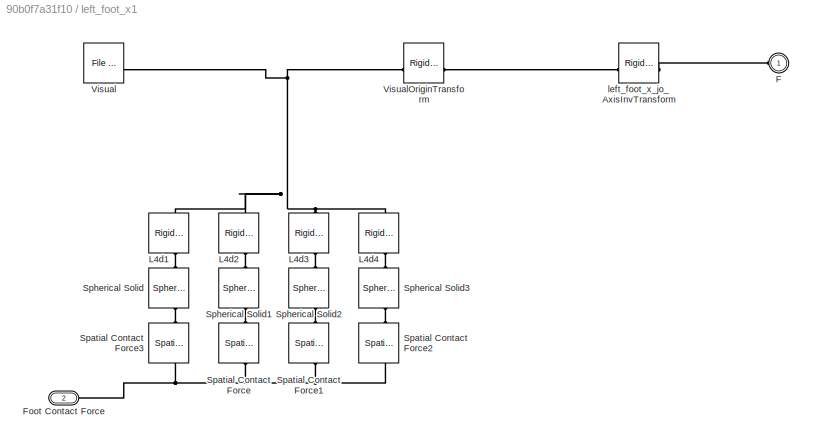
BLOCK [SubSystem] left_foot_x1
  Commented = on
BLOCK [PMIOPort] left_foot_x1/F
  Side = Left
BLOCK [PMIOPort] left_foot_x1/Foot Contact Force
  Port = 2
  Side = Right
BLOCK [Reference] left_foot_x1/L4d1  REF=sm_lib/Frames and
Transforms/Rigid
Transform
  NameLocation = left
  SourceBlock = sm_lib/Frames and\nTransforms/Rigid\nTransform
  SourceType = Rigid\nTransform
BLOCK [Reference] left_foot_x1/L4d2  REF=sm_lib/Frames and
Transforms/Rigid
Transform
  NameLocation = left
  SourceBlock = sm_lib/Frames and\nTransforms/Rigid\nTransform
  SourceType = Rigid\nTransform
BLOCK [Reference] left_foot_x1/L4d3  REF=sm_lib/Frames and
Transforms/Rigid
Transform
  NameLocation = left
  SourceBlock = sm_lib/Frames and\nTransforms/Rigid\nTransform
  SourceType = Rigid\nTransform
BLOCK [Reference] left_foot_x1/L4d4  REF=sm_lib/Frames and
Transforms/Rigid
Transform
  NameLocation = left
  SourceBlock = sm_lib/Frames and\nTransforms/Rigid\nTransform
  SourceType = Rigid\nTransform
BLOCK [Reference] left_foot_x1/Spatial Contact Force  REF=sm_lib/Forces and
Torques/Spatial
Contact Force
  NameLocation = right
  SourceBlock = sm_lib/Forces and\nTorques/Spatial\nContact Force
  SourceType = Spatial\nContact Force
BLOCK [Reference] left_foot_x1/Spatial Contact Force1  REF=sm_lib/Forces and
Torques/Spatial
Contact Force
  NameLocation = right
  SourceBlock = sm_lib/Forces and\nTorques/Spatial\nContact Force
  SourceType = Spatial\nContact Force
BLOCK [Reference] left_foot_x1/Spatial Contact Force2  REF=sm_lib/Forces and
Torques/Spatial
Contact Force
  NameLocation = right
  SourceBlock = sm_lib/Forces and\nTorques/Spatial\nContact Force
  SourceType = Spatial\nContact Force
BLOCK [Reference] left_foot_x1/Spatial Contact Force3  REF=sm_lib/Forces and
Torques/Spatial
Contact Force
  NameLocation = right
  SourceBlock = sm_lib/Forces and\nTorques/Spatial\nContact Force
  SourceType = Spatial\nContact Force
BLOCK [Reference] left_foot_x1/Spherical Solid  REF=sm_lib/Body Elements/Spherical Solid
  NameLocation = right
  SourceBlock = sm_lib/Body Elements/Spherical Solid
  SourceType = Spherical Solid
BLOCK [Reference] left_foot_x1/Spherical Solid1  REF=sm_lib/Body Elements/Spherical Solid
  NameLocation = right
  SourceBlock = sm_lib/Body Elements/Spherical Solid
  SourceType = Spherical Solid
BLOCK [Reference] left_foot_x1/Spherical Solid2  REF=sm_lib/Body Elements/Spherical Solid
  NameLocation = right
  SourceBlock = sm_lib/Body Elements/Spherical Solid
  SourceType = Spherical Solid
BLOCK [Reference] left_foot_x1/Spherical Solid3  REF=sm_lib/Body Elements/Spherical Solid
  NameLocation = right
  SourceBlock = sm_lib/Body Elements/Spherical Solid
  SourceType = Spherical Solid
BLOCK [Reference] left_foot_x1/Visual  REF=sm_lib/Body Elements/File Solid
  SourceBlock = sm_lib/Body Elements/File Solid
  SourceType = File Solid
BLOCK [Reference] left_foot_x1/VisualOriginTransform  REF=sm_lib/Frames and
Transforms/Rigid
Transform
  NameLocation = top
  SourceBlock = sm_lib/Frames and\nTransforms/Rigid\nTransform
  SourceType = Rigid\nTransform
BLOCK [Reference] left_foot_x1/left_foot_x_jo_AxisInvTransform  REF=sm_lib/Frames and
Transforms/Rigid
Transform
  SourceBlock = sm_lib/Frames and\nTransforms/Rigid\nTransform
  SourceType = Rigid\nTransform
BLOCK [Reference] left_foot_x_jo  REF=sm_lib/Joints/Revolute Joint
  SourceBlock = sm_lib/Joints/Revolute Joint
  SourceType = Revolute Joint
BLOCK [Reference] left_foot_x_jo1  REF=sm_lib/Joints/Revolute Joint
  Commented = on
  SourceBlock = sm_lib/Joints/Revolute Joint
  SourceType = Revolute Joint
BLOCK [SubSystem] left_foot_y
BLOCK [PMIOPort] left_foot_y/F
  Side = Left
BLOCK [PMIOPort] left_foot_y/F1
  Port = 2
  Side = Right
BLOCK [Reference] left_foot_y/Visual  REF=sm_lib/Body Elements/File Solid
  SourceBlock = sm_lib/Body Elements/File Solid
  SourceType = File Solid
BLOCK [Reference] left_foot_y/VisualOriginTransform  REF=sm_lib/Frames and
Transforms/Rigid
Transform
  SourceBlock = sm_lib/Frames and\nTransforms/Rigid\nTransform
  SourceType = Rigid\nTransform
BLOCK [Reference] left_foot_y/left_foot_x_jo_AxisTransform  REF=sm_lib/Frames and
Transforms/Rigid
Transform
  SourceBlock = sm_lib/Frames and\nTransforms/Rigid\nTransform
  SourceType = Rigid\nTransform
BLOCK [Reference] left_foot_y/left_foot_x_jo_OriginTransform  REF=sm_lib/Frames and
Transforms/Rigid
Transform
  SourceBlock = sm_lib/Frames and\nTransforms/Rigid\nTransform
  SourceType = Rigid\nTransform
BLOCK [Reference] left_foot_y/left_foot_y_jo_AxisInvTransform  REF=sm_lib/Frames and
Transforms/Rigid
Transform
  SourceBlock = sm_lib/Frames and\nTransforms/Rigid\nTransform
  SourceType = Rigid\nTransform
BLOCK [SubSystem] left_foot_y1
  Commented = on
BLOCK [PMIOPort] left_foot_y1/F
  Side = Left
BLOCK [PMIOPort] left_foot_y1/F1
  Port = 2
  Side = Right
BLOCK [Reference] left_foot_y1/Visual  REF=sm_lib/Body Elements/File Solid
  SourceBlock = sm_lib/Body Elements/File Solid
  SourceType = File Solid
BLOCK [Reference] left_foot_y1/VisualOriginTransform  REF=sm_lib/Frames and
Transforms/Rigid
Transform
  SourceBlock = sm_lib/Frames and\nTransforms/Rigid\nTransform
  SourceType = Rigid\nTransform
BLOCK [Reference] left_foot_y1/left_foot_x_jo_AxisTransform  REF=sm_lib/Frames and
Transforms/Rigid
Transform
  SourceBlock = sm_lib/Frames and\nTransforms/Rigid\nTransform
  SourceType = Rigid\nTransform
BLOCK [Reference] left_foot_y1/left_foot_x_jo_OriginTransform  REF=sm_lib/Frames and
Transforms/Rigid
Transform
  SourceBlock = sm_lib/Frames and\nTransforms/Rigid\nTransform
  SourceType = Rigid\nTransform
BLOCK [Reference] left_foot_y1/left_foot_y_jo_AxisInvTransform  REF=sm_lib/Frames and
Transforms/Rigid
Transform
  SourceBlock = sm_lib/Frames and\nTransforms/Rigid\nTransform
  SourceType = Rigid\nTransform
BLOCK [Reference] left_foot_y_jo  REF=sm_lib/Joints/Revolute Joint
  SourceBlock = sm_lib/Joints/Revolute Joint
  SourceType = Revolute Joint
BLOCK [Reference] left_foot_y_jo1  REF=sm_lib/Joints/Revolute Joint
  Commented = on
  SourceBlock = sm_lib/Joints/Revolute Joint
  SourceType = Revolute Joint
BLOCK [SubSystem] left_hip1
BLOCK [PMIOPort] left_hip1/F
  Side = Left
BLOCK [PMIOPort] left_hip1/F1
  Port = 2
  Side = Right
BLOCK [Reference] left_hip1/VisualOriginTransform  REF=sm_lib/Frames and
Transforms/Rigid
Transform
  SourceBlock = sm_lib/Frames and\nTransforms/Rigid\nTransform
  SourceType = Rigid\nTransform
BLOCK [Reference] left_hip1/left_hip_pitch_AxisInvTransform  REF=sm_lib/Frames and
Transforms/Rigid
Transform
  SourceBlock = sm_lib/Frames and\nTransforms/Rigid\nTransform
  SourceType = Rigid\nTransform
BLOCK [Reference] left_hip1/left_hip_roll  REF=sm_lib/Body Elements/File Solid
  SourceBlock = sm_lib/Body Elements/File Solid
  SourceType = File Solid
BLOCK [Reference] left_hip1/left_hip_roll_AxisTransform  REF=sm_lib/Frames and
Transforms/Rigid
Transform
  SourceBlock = sm_lib/Frames and\nTransforms/Rigid\nTransform
  SourceType = Rigid\nTransform
BLOCK [Reference] left_hip1/left_hip_roll_OriginTransform  REF=sm_lib/Frames and
Transforms/Rigid
Transform
  SourceBlock = sm_lib/Frames and\nTransforms/Rigid\nTransform
  SourceType = Rigid\nTransform
BLOCK [SubSystem] left_hip2
BLOCK [PMIOPort] left_hip2/F
  Side = Left
BLOCK [PMIOPort] left_hip2/F1
  Port = 2
  Side = Right
BLOCK [Reference] left_hip2/VisualOriginTransform  REF=sm_lib/Frames and
Transforms/Rigid
Transform
  SourceBlock = sm_lib/Frames and\nTransforms/Rigid\nTransform
  SourceType = Rigid\nTransform
BLOCK [Reference] left_hip2/left_hip_roll  REF=sm_lib/Body Elements/File Solid
  SourceBlock = sm_lib/Body Elements/File Solid
  SourceType = File Solid
BLOCK [Reference] left_hip2/left_hip_roll_AxisInvTransform  REF=sm_lib/Frames and
Transforms/Rigid
Transform
  SourceBlock = sm_lib/Frames and\nTransforms/Rigid\nTransform
  SourceType = Rigid\nTransform
BLOCK [Reference] left_hip2/left_hip_yaw_AxisTransform  REF=sm_lib/Frames and
Transforms/Rigid
Transform
  SourceBlock = sm_lib/Frames and\nTransforms/Rigid\nTransform
  SourceType = Rigid\nTransform
BLOCK [Reference] left_hip2/left_hip_yaw_OriginTransform  REF=sm_lib/Frames and
Transforms/Rigid
Transform
  SourceBlock = sm_lib/Frames and\nTransforms/Rigid\nTransform
  SourceType = Rigid\nTransform
BLOCK [SubSystem] left_hip3
BLOCK [PMIOPort] left_hip3/F
  Side = Left
BLOCK [PMIOPort] left_hip3/F1
  Port = 2
  Side = Right
BLOCK [Reference] left_hip3/Visual  REF=sm_lib/Body Elements/File Solid
  SourceBlock = sm_lib/Body Elements/File Solid
  SourceType = File Solid
BLOCK [Reference] left_hip3/VisualOriginTransform  REF=sm_lib/Frames and
Transforms/Rigid
Transform
  SourceBlock = sm_lib/Frames and\nTransforms/Rigid\nTransform
  SourceType = Rigid\nTransform
BLOCK [Reference] left_hip3/left_hip_yaw_AxisInvTransform  REF=sm_lib/Frames and
Transforms/Rigid
Transform
  SourceBlock = sm_lib/Frames and\nTransforms/Rigid\nTransform
  SourceType = Rigid\nTransform
BLOCK [Reference] left_hip3/left_knee_jo_AxisTransform  REF=sm_lib/Frames and
Transforms/Rigid
Transform
  SourceBlock = sm_lib/Frames and\nTransforms/Rigid\nTransform
  SourceType = Rigid\nTransform
BLOCK [Reference] left_hip3/left_knee_jo_OriginTransform  REF=sm_lib/Frames and
Transforms/Rigid
Transform
  SourceBlock = sm_lib/Frames and\nTransforms/Rigid\nTransform
  SourceType = Rigid\nTransform
BLOCK [SubSystem] left_hip4
  Commented = on
BLOCK [PMIOPort] left_hip4/F
  Side = Left
BLOCK [PMIOPort] left_hip4/F1
  Port = 2
  Side = Right
BLOCK [Reference] left_hip4/VisualOriginTransform  REF=sm_lib/Frames and
Transforms/Rigid
Transform
  SourceBlock = sm_lib/Frames and\nTransforms/Rigid\nTransform
  SourceType = Rigid\nTransform
BLOCK [Reference] left_hip4/left_hip_pitch_AxisInvTransform  REF=sm_lib/Frames and
Transforms/Rigid
Transform
  SourceBlock = sm_lib/Frames and\nTransforms/Rigid\nTransform
  SourceType = Rigid\nTransform
BLOCK [Reference] left_hip4/left_hip_roll  REF=sm_lib/Body Elements/File Solid
  SourceBlock = sm_lib/Body Elements/File Solid
  SourceType = File Solid
BLOCK [Reference] left_hip4/left_hip_roll_AxisTransform  REF=sm_lib/Frames and
Transforms/Rigid
Transform
  SourceBlock = sm_lib/Frames and\nTransforms/Rigid\nTransform
  SourceType = Rigid\nTransform
BLOCK [Reference] left_hip4/left_hip_roll_OriginTransform  REF=sm_lib/Frames and
Transforms/Rigid
Transform
  SourceBlock = sm_lib/Frames and\nTransforms/Rigid\nTransform
  SourceType = Rigid\nTransform
BLOCK [SubSystem] left_hip5
  Commented = on
BLOCK [PMIOPort] left_hip5/F
  Side = Left
BLOCK [PMIOPort] left_hip5/F1
  Port = 2
  Side = Right
BLOCK [Reference] left_hip5/VisualOriginTransform  REF=sm_lib/Frames and
Transforms/Rigid
Transform
  SourceBlock = sm_lib/Frames and\nTransforms/Rigid\nTransform
  SourceType = Rigid\nTransform
BLOCK [Reference] left_hip5/left_hip_roll  REF=sm_lib/Body Elements/File Solid
  SourceBlock = sm_lib/Body Elements/File Solid
  SourceType = File Solid
BLOCK [Reference] left_hip5/left_hip_roll_AxisInvTransform  REF=sm_lib/Frames and
Transforms/Rigid
Transform
  SourceBlock = sm_lib/Frames and\nTransforms/Rigid\nTransform
  SourceType = Rigid\nTransform
BLOCK [Reference] left_hip5/left_hip_yaw_AxisTransform  REF=sm_lib/Frames and
Transforms/Rigid
Transform
  SourceBlock = sm_lib/Frames and\nTransforms/Rigid\nTransform
  SourceType = Rigid\nTransform
BLOCK [Reference] left_hip5/left_hip_yaw_OriginTransform  REF=sm_lib/Frames and
Transforms/Rigid
Transform
  SourceBlock = sm_lib/Frames and\nTransforms/Rigid\nTransform
  SourceType = Rigid\nTransform
BLOCK [SubSystem] left_hip6
  Commented = on
BLOCK [PMIOPort] left_hip6/F
  Side = Left
BLOCK [PMIOPort] left_hip6/F1
  Port = 2
  Side = Right
BLOCK [Reference] left_hip6/Visual  REF=sm_lib/Body Elements/File Solid
  SourceBlock = sm_lib/Body Elements/File Solid
  SourceType = File Solid
BLOCK [Reference] left_hip6/VisualOriginTransform  REF=sm_lib/Frames and
Transforms/Rigid
Transform
  SourceBlock = sm_lib/Frames and\nTransforms/Rigid\nTransform
  SourceType = Rigid\nTransform
BLOCK [Reference] left_hip6/left_hip_yaw_AxisInvTransform  REF=sm_lib/Frames and
Transforms/Rigid
Transform
  SourceBlock = sm_lib/Frames and\nTransforms/Rigid\nTransform
  SourceType = Rigid\nTransform
BLOCK [Reference] left_hip6/left_knee_jo_AxisTransform  REF=sm_lib/Frames and
Transforms/Rigid
Transform
  SourceBlock = sm_lib/Frames and\nTransforms/Rigid\nTransform
  SourceType = Rigid\nTransform
BLOCK [Reference] left_hip6/left_knee_jo_OriginTransform  REF=sm_lib/Frames and
Transforms/Rigid
Transform
  SourceBlock = sm_lib/Frames and\nTransforms/Rigid\nTransform
  SourceType = Rigid\nTransform
BLOCK [Reference] left_hip_pitch  REF=sm_lib/Joints/Revolute Joint
  SourceBlock = sm_lib/Joints/Revolute Joint
  SourceType = Revolute Joint
BLOCK [Reference] left_hip_pitch1  REF=sm_lib/Joints/Revolute Joint
  Commented = on
  SourceBlock = sm_lib/Joints/Revolute Joint
  SourceType = Revolute Joint
BLOCK [Reference] left_hip_pitch_AxisTransform  REF=sm_lib/Frames and
Transforms/Rigid
Transform
  SourceBlock = sm_lib/Frames and\nTransforms/Rigid\nTransform
  SourceType = Rigid\nTransform
BLOCK [Reference] left_hip_pitch_OriginTransform  REF=sm_lib/Frames and
Transforms/Rigid
Transform
  SourceBlock = sm_lib/Frames and\nTransforms/Rigid\nTransform
  SourceType = Rigid\nTransform
BLOCK [Reference] left_hip_roll  REF=sm_lib/Joints/Revolute Joint
  SourceBlock = sm_lib/Joints/Revolute Joint
  SourceType = Revolute Joint
BLOCK [Reference] left_hip_roll1  REF=sm_lib/Joints/Revolute Joint
  Commented = on
  SourceBlock = sm_lib/Joints/Revolute Joint
  SourceType = Revolute Joint
BLOCK [Reference] left_hip_yaw  REF=sm_lib/Joints/Revolute Joint
  SourceBlock = sm_lib/Joints/Revolute Joint
  SourceType = Revolute Joint
BLOCK [Reference] left_hip_yaw1  REF=sm_lib/Joints/Revolute Joint
  Commented = on
  SourceBlock = sm_lib/Joints/Revolute Joint
  SourceType = Revolute Joint
BLOCK [SubSystem] left_knee
BLOCK [PMIOPort] left_knee/F
  Side = Left
BLOCK [PMIOPort] left_knee/F1
  Port = 2
  Side = Right
BLOCK [Reference] left_knee/Visual  REF=sm_lib/Body Elements/File Solid
  SourceBlock = sm_lib/Body Elements/File Solid
  SourceType = File Solid
BLOCK [Reference] left_knee/VisualOriginTransform  REF=sm_lib/Frames and
Transforms/Rigid
Transform
  SourceBlock = sm_lib/Frames and\nTransforms/Rigid\nTransform
  SourceType = Rigid\nTransform
BLOCK [Reference] left_knee/left_foot_y_jo_AxisTransform  REF=sm_lib/Frames and
Transforms/Rigid
Transform
  SourceBlock = sm_lib/Frames and\nTransforms/Rigid\nTransform
  SourceType = Rigid\nTransform
BLOCK [Reference] left_knee/left_foot_y_jo_OriginTransform  REF=sm_lib/Frames and
Transforms/Rigid
Transform
  SourceBlock = sm_lib/Frames and\nTransforms/Rigid\nTransform
  SourceType = Rigid\nTransform
BLOCK [Reference] left_knee/left_knee_jo_AxisInvTransform  REF=sm_lib/Frames and
Transforms/Rigid
Transform
  SourceBlock = sm_lib/Frames and\nTransforms/Rigid\nTransform
  SourceType = Rigid\nTransform
BLOCK [SubSystem] left_knee1
  Commented = on
BLOCK [PMIOPort] left_knee1/F
  Side = Left
BLOCK [PMIOPort] left_knee1/F1
  Port = 2
  Side = Right
BLOCK [Reference] left_knee1/Visual  REF=sm_lib/Body Elements/File Solid
  SourceBlock = sm_lib/Body Elements/File Solid
  SourceType = File Solid
BLOCK [Reference] left_knee1/VisualOriginTransform  REF=sm_lib/Frames and
Transforms/Rigid
Transform
  SourceBlock = sm_lib/Frames and\nTransforms/Rigid\nTransform
  SourceType = Rigid\nTransform
BLOCK [Reference] left_knee1/left_foot_y_jo_AxisTransform  REF=sm_lib/Frames and
Transforms/Rigid
Transform
  SourceBlock = sm_lib/Frames and\nTransforms/Rigid\nTransform
  SourceType = Rigid\nTransform
BLOCK [Reference] left_knee1/left_foot_y_jo_OriginTransform  REF=sm_lib/Frames and
Transforms/Rigid
Transform
  SourceBlock = sm_lib/Frames and\nTransforms/Rigid\nTransform
  SourceType = Rigid\nTransform
BLOCK [Reference] left_knee1/left_knee_jo_AxisInvTransform  REF=sm_lib/Frames and
Transforms/Rigid
Transform
  SourceBlock = sm_lib/Frames and\nTransforms/Rigid\nTransform
  SourceType = Rigid\nTransform
BLOCK [Reference] left_knee_jo  REF=sm_lib/Joints/Revolute Joint
  SourceBlock = sm_lib/Joints/Revolute Joint
  SourceType = Revolute Joint
BLOCK [Reference] left_knee_jo1  REF=sm_lib/Joints/Revolute Joint
  Commented = on
  SourceBlock = sm_lib/Joints/Revolute Joint
  SourceType = Revolute Joint
BLOCK [SubSystem] right_arm
BLOCK [PMIOPort] right_arm/F
  Side = Left
BLOCK [PMIOPort] right_arm/F1
  Port = 2
  Side = Right
BLOCK [Reference] right_arm/Inertia  REF=sm_lib/Body Elements/Inertia
  SourceBlock = sm_lib/Body Elements/Inertia
  SourceType = Inertia
BLOCK [Reference] right_arm/InertiaOriginTransform  REF=sm_lib/Frames and
Transforms/Rigid
Transform
  SourceBlock = sm_lib/Frames and\nTransforms/Rigid\nTransform
  SourceType = Rigid\nTransform
BLOCK [Reference] right_arm/ReferenceFrame  REF=sm_lib/Frames and
Transforms/Reference
Frame
  SourceBlock = sm_lib/Frames and\nTransforms/Reference\nFrame
  SourceType = Reference\nFrame
BLOCK [Reference] right_arm/Visual  REF=sm_lib/Body Elements/File Solid
  SourceBlock = sm_lib/Body Elements/File Solid
  SourceType = File Solid
BLOCK [Reference] right_arm/VisualOriginTransform  REF=sm_lib/Frames and
Transforms/Rigid
Transform
  SourceBlock = sm_lib/Frames and\nTransforms/Rigid\nTransform
  SourceType = Rigid\nTransform
BLOCK [Reference] right_arm/right_arm1_AxisInvTransform  REF=sm_lib/Frames and
Transforms/Rigid
Transform
  SourceBlock = sm_lib/Frames and\nTransforms/Rigid\nTransform
  SourceType = Rigid\nTransform
BLOCK [Reference] right_arm/right_arm_2_AxisTransform  REF=sm_lib/Frames and
Transforms/Rigid
Transform
  SourceBlock = sm_lib/Frames and\nTransforms/Rigid\nTransform
  SourceType = Rigid\nTransform
BLOCK [Reference] right_arm/right_arm_2_OriginTransform  REF=sm_lib/Frames and
Transforms/Rigid
Transform
  SourceBlock = sm_lib/Frames and\nTransforms/Rigid\nTransform
  SourceType = Rigid\nTransform
BLOCK [Reference] right_arm1  REF=sm_lib/Joints/Revolute Joint
  SourceBlock = sm_lib/Joints/Revolute Joint
  SourceType = Revolute Joint
BLOCK [SubSystem] right_arm2
BLOCK [PMIOPort] right_arm2/F
  Side = Left
BLOCK [PMIOPort] right_arm2/F1
  Port = 2
  Side = Right
BLOCK [Reference] right_arm2/Inertia  REF=sm_lib/Body Elements/Inertia
  SourceBlock = sm_lib/Body Elements/Inertia
  SourceType = Inertia
BLOCK [Reference] right_arm2/InertiaOriginTransform  REF=sm_lib/Frames and
Transforms/Rigid
Transform
  SourceBlock = sm_lib/Frames and\nTransforms/Rigid\nTransform
  SourceType = Rigid\nTransform
BLOCK [Reference] right_arm2/ReferenceFrame  REF=sm_lib/Frames and
Transforms/Reference
Frame
  SourceBlock = sm_lib/Frames and\nTransforms/Reference\nFrame
  SourceType = Reference\nFrame
BLOCK [Reference] right_arm2/Visual  REF=sm_lib/Body Elements/File Solid
  SourceBlock = sm_lib/Body Elements/File Solid
  SourceType = File Solid
BLOCK [Reference] right_arm2/VisualOriginTransform  REF=sm_lib/Frames and
Transforms/Rigid
Transform
  SourceBlock = sm_lib/Frames and\nTransforms/Rigid\nTransform
  SourceType = Rigid\nTransform
BLOCK [Reference] right_arm2/right_arm_2_AxisInvTransform  REF=sm_lib/Frames and
Transforms/Rigid
Transform
  SourceBlock = sm_lib/Frames and\nTransforms/Rigid\nTransform
  SourceType = Rigid\nTransform
BLOCK [Reference] right_arm2/right_arm_3_AxisTransform  REF=sm_lib/Frames and
Transforms/Rigid
Transform
  SourceBlock = sm_lib/Frames and\nTransforms/Rigid\nTransform
  SourceType = Rigid\nTransform
BLOCK [Reference] right_arm2/right_arm_3_OriginTransform  REF=sm_lib/Frames and
Transforms/Rigid
Transform
  SourceBlock = sm_lib/Frames and\nTransforms/Rigid\nTransform
  SourceType = Rigid\nTransform
BLOCK [SubSystem] right_arm3
BLOCK [PMIOPort] right_arm3/F
  Side = Left
BLOCK [Reference] right_arm3/Inertia  REF=sm_lib/Body Elements/Inertia
  SourceBlock = sm_lib/Body Elements/Inertia
  SourceType = Inertia
BLOCK [Reference] right_arm3/InertiaOriginTransform  REF=sm_lib/Frames and
Transforms/Rigid
Transform
  SourceBlock = sm_lib/Frames and\nTransforms/Rigid\nTransform
  SourceType = Rigid\nTransform
BLOCK [Reference] right_arm3/ReferenceFrame  REF=sm_lib/Frames and
Transforms/Reference
Frame
  SourceBlock = sm_lib/Frames and\nTransforms/Reference\nFrame
  SourceType = Reference\nFrame
BLOCK [Reference] right_arm3/Visual  REF=sm_lib/Body Elements/File Solid
  SourceBlock = sm_lib/Body Elements/File Solid
  SourceType = File Solid
BLOCK [Reference] right_arm3/VisualOriginTransform  REF=sm_lib/Frames and
Transforms/Rigid
Transform
  SourceBlock = sm_lib/Frames and\nTransforms/Rigid\nTransform
  SourceType = Rigid\nTransform
BLOCK [Reference] right_arm3/right_arm_3_AxisInvTransform  REF=sm_lib/Frames and
Transforms/Rigid
Transform
  SourceBlock = sm_lib/Frames and\nTransforms/Rigid\nTransform
  SourceType = Rigid\nTransform
BLOCK [Reference] right_arm_2  REF=sm_lib/Joints/Revolute Joint
  SourceBlock = sm_lib/Joints/Revolute Joint
  SourceType = Revolute Joint
BLOCK [Reference] right_arm_3  REF=sm_lib/Joints/Revolute Joint
  SourceBlock = sm_lib/Joints/Revolute Joint
  SourceType = Revolute Joint
BLOCK [SubSystem] right_foot_x
BLOCK [PMIOPort] right_foot_x/F
  Side = Left
BLOCK [PMIOPort] right_foot_x/Foot Contact Force
  Port = 2
  Side = Right
BLOCK [Reference] right_foot_x/L4d5  REF=sm_lib/Frames and
Transforms/Rigid
Transform
  NameLocation = left
  SourceBlock = sm_lib/Frames and\nTransforms/Rigid\nTransform
  SourceType = Rigid\nTransform
BLOCK [Reference] right_foot_x/L4d6  REF=sm_lib/Frames and
Transforms/Rigid
Transform
  NameLocation = left
  SourceBlock = sm_lib/Frames and\nTransforms/Rigid\nTransform
  SourceType = Rigid\nTransform
BLOCK [Reference] right_foot_x/L4d7  REF=sm_lib/Frames and
Transforms/Rigid
Transform
  NameLocation = left
  SourceBlock = sm_lib/Frames and\nTransforms/Rigid\nTransform
  SourceType = Rigid\nTransform
BLOCK [Reference] right_foot_x/L4d8  REF=sm_lib/Frames and
Transforms/Rigid
Transform
  NameLocation = left
  SourceBlock = sm_lib/Frames and\nTransforms/Rigid\nTransform
  SourceType = Rigid\nTransform
BLOCK [Reference] right_foot_x/Spatial Contact Force4  REF=sm_lib/Forces and
Torques/Spatial
Contact Force
  NameLocation = right
  SourceBlock = sm_lib/Forces and\nTorques/Spatial\nContact Force
  SourceType = Spatial\nContact Force
BLOCK [Reference] right_foot_x/Spatial Contact Force5  REF=sm_lib/Forces and
Torques/Spatial
Contact Force
  NameLocation = right
  SourceBlock = sm_lib/Forces and\nTorques/Spatial\nContact Force
  SourceType = Spatial\nContact Force
BLOCK [Reference] right_foot_x/Spatial Contact Force6  REF=sm_lib/Forces and
Torques/Spatial
Contact Force
  NameLocation = right
  SourceBlock = sm_lib/Forces and\nTorques/Spatial\nContact Force
  SourceType = Spatial\nContact Force
BLOCK [Reference] right_foot_x/Spatial Contact Force7  REF=sm_lib/Forces and
Torques/Spatial
Contact Force
  NameLocation = right
  SourceBlock = sm_lib/Forces and\nTorques/Spatial\nContact Force
  SourceType = Spatial\nContact Force
BLOCK [Reference] right_foot_x/Spherical Solid4  REF=sm_lib/Body Elements/Spherical Solid
  NameLocation = right
  SourceBlock = sm_lib/Body Elements/Spherical Solid
  SourceType = Spherical Solid
BLOCK [Reference] right_foot_x/Spherical Solid5  REF=sm_lib/Body Elements/Spherical Solid
  NameLocation = right
  SourceBlock = sm_lib/Body Elements/Spherical Solid
  SourceType = Spherical Solid
BLOCK [Reference] right_foot_x/Spherical Solid6  REF=sm_lib/Body Elements/Spherical Solid
  NameLocation = right
  SourceBlock = sm_lib/Body Elements/Spherical Solid
  SourceType = Spherical Solid
BLOCK [Reference] right_foot_x/Spherical Solid7  REF=sm_lib/Body Elements/Spherical Solid
  NameLocation = right
  SourceBlock = sm_lib/Body Elements/Spherical Solid
  SourceType = Spherical Solid
BLOCK [Reference] right_foot_x/Visual  REF=sm_lib/Body Elements/File Solid
  SourceBlock = sm_lib/Body Elements/File Solid
  SourceType = File Solid
BLOCK [Reference] right_foot_x/VisualOriginTransform  REF=sm_lib/Frames and
Transforms/Rigid
Transform
  NameLocation = top
  SourceBlock = sm_lib/Frames and\nTransforms/Rigid\nTransform
  SourceType = Rigid\nTransform
BLOCK [Reference] right_foot_x/right_foot_x_jo_AxisInvTransform  REF=sm_lib/Frames and
Transforms/Rigid
Transform
  SourceBlock = sm_lib/Frames and\nTransforms/Rigid\nTransform
  SourceType = Rigid\nTransform
BLOCK [SubSystem] right_foot_x1
  Commented = on
BLOCK [PMIOPort] right_foot_x1/F
  Side = Left
BLOCK [PMIOPort] right_foot_x1/Foot Contact Force
  Port = 2
  Side = Right
BLOCK [Reference] right_foot_x1/L4d5  REF=sm_lib/Frames and
Transforms/Rigid
Transform
  NameLocation = left
  SourceBlock = sm_lib/Frames and\nTransforms/Rigid\nTransform
  SourceType = Rigid\nTransform
BLOCK [Reference] right_foot_x1/L4d6  REF=sm_lib/Frames and
Transforms/Rigid
Transform
  NameLocation = left
  SourceBlock = sm_lib/Frames and\nTransforms/Rigid\nTransform
  SourceType = Rigid\nTransform
BLOCK [Reference] right_foot_x1/L4d7  REF=sm_lib/Frames and
Transforms/Rigid
Transform
  NameLocation = left
  SourceBlock = sm_lib/Frames and\nTransforms/Rigid\nTransform
  SourceType = Rigid\nTransform
BLOCK [Reference] right_foot_x1/L4d8  REF=sm_lib/Frames and
Transforms/Rigid
Transform
  NameLocation = left
  SourceBlock = sm_lib/Frames and\nTransforms/Rigid\nTransform
  SourceType = Rigid\nTransform
BLOCK [Reference] right_foot_x1/Spatial Contact Force4  REF=sm_lib/Forces and
Torques/Spatial
Contact Force
  NameLocation = right
  SourceBlock = sm_lib/Forces and\nTorques/Spatial\nContact Force
  SourceType = Spatial\nContact Force
BLOCK [Reference] right_foot_x1/Spatial Contact Force5  REF=sm_lib/Forces and
Torques/Spatial
Contact Force
  NameLocation = right
  SourceBlock = sm_lib/Forces and\nTorques/Spatial\nContact Force
  SourceType = Spatial\nContact Force
BLOCK [Reference] right_foot_x1/Spatial Contact Force6  REF=sm_lib/Forces and
Torques/Spatial
Contact Force
  NameLocation = right
  SourceBlock = sm_lib/Forces and\nTorques/Spatial\nContact Force
  SourceType = Spatial\nContact Force
BLOCK [Reference] right_foot_x1/Spatial Contact Force7  REF=sm_lib/Forces and
Torques/Spatial
Contact Force
  NameLocation = right
  SourceBlock = sm_lib/Forces and\nTorques/Spatial\nContact Force
  SourceType = Spatial\nContact Force
BLOCK [Reference] right_foot_x1/Spherical Solid4  REF=sm_lib/Body Elements/Spherical Solid
  NameLocation = right
  SourceBlock = sm_lib/Body Elements/Spherical Solid
  SourceType = Spherical Solid
BLOCK [Reference] right_foot_x1/Spherical Solid5  REF=sm_lib/Body Elements/Spherical Solid
  NameLocation = right
  SourceBlock = sm_lib/Body Elements/Spherical Solid
  SourceType = Spherical Solid
BLOCK [Reference] right_foot_x1/Spherical Solid6  REF=sm_lib/Body Elements/Spherical Solid
  NameLocation = right
  SourceBlock = sm_lib/Body Elements/Spherical Solid
  SourceType = Spherical Solid
BLOCK [Reference] right_foot_x1/Spherical Solid7  REF=sm_lib/Body Elements/Spherical Solid
  NameLocation = right
  SourceBlock = sm_lib/Body Elements/Spherical Solid
  SourceType = Spherical Solid
BLOCK [Reference] right_foot_x1/Visual  REF=sm_lib/Body Elements/File Solid
  SourceBlock = sm_lib/Body Elements/File Solid
  SourceType = File Solid
BLOCK [Reference] right_foot_x1/VisualOriginTransform  REF=sm_lib/Frames and
Transforms/Rigid
Transform
  NameLocation = top
  SourceBlock = sm_lib/Frames and\nTransforms/Rigid\nTransform
  SourceType = Rigid\nTransform
BLOCK [Reference] right_foot_x1/right_foot_x_jo_AxisInvTransform  REF=sm_lib/Frames and
Transforms/Rigid
Transform
  SourceBlock = sm_lib/Frames and\nTransforms/Rigid\nTransform
  SourceType = Rigid\nTransform
BLOCK [Reference] right_foot_x_jo  REF=sm_lib/Joints/Revolute Joint
  SourceBlock = sm_lib/Joints/Revolute Joint
  SourceType = Revolute Joint
BLOCK [Reference] right_foot_x_jo1  REF=sm_lib/Joints/Revolute Joint
  Commented = on
  SourceBlock = sm_lib/Joints/Revolute Joint
  SourceType = Revolute Joint
BLOCK [SubSystem] right_foot_y
BLOCK [PMIOPort] right_foot_y/F
  Side = Left
BLOCK [PMIOPort] right_foot_y/F1
  Port = 2
  Side = Right
BLOCK [Reference] right_foot_y/Visual  REF=sm_lib/Body Elements/File Solid
  SourceBlock = sm_lib/Body Elements/File Solid
  SourceType = File Solid
BLOCK [Reference] right_foot_y/VisualOriginTransform  REF=sm_lib/Frames and
Transforms/Rigid
Transform
  SourceBlock = sm_lib/Frames and\nTransforms/Rigid\nTransform
  SourceType = Rigid\nTransform
BLOCK [Reference] right_foot_y/right_foot_x_jo_AxisTransform  REF=sm_lib/Frames and
Transforms/Rigid
Transform
  SourceBlock = sm_lib/Frames and\nTransforms/Rigid\nTransform
  SourceType = Rigid\nTransform
BLOCK [Reference] right_foot_y/right_foot_x_jo_OriginTransform  REF=sm_lib/Frames and
Transforms/Rigid
Transform
  SourceBlock = sm_lib/Frames and\nTransforms/Rigid\nTransform
  SourceType = Rigid\nTransform
BLOCK [Reference] right_foot_y/right_foot_y_jo_AxisInvTransform  REF=sm_lib/Frames and
Transforms/Rigid
Transform
  SourceBlock = sm_lib/Frames and\nTransforms/Rigid\nTransform
  SourceType = Rigid\nTransform
BLOCK [SubSystem] right_foot_y1
  Commented = on
BLOCK [PMIOPort] right_foot_y1/F
  Side = Left
BLOCK [PMIOPort] right_foot_y1/F1
  Port = 2
  Side = Right
BLOCK [Reference] right_foot_y1/Visual  REF=sm_lib/Body Elements/File Solid
  SourceBlock = sm_lib/Body Elements/File Solid
  SourceType = File Solid
BLOCK [Reference] right_foot_y1/VisualOriginTransform  REF=sm_lib/Frames and
Transforms/Rigid
Transform
  SourceBlock = sm_lib/Frames and\nTransforms/Rigid\nTransform
  SourceType = Rigid\nTransform
BLOCK [Reference] right_foot_y1/right_foot_x_jo_AxisTransform  REF=sm_lib/Frames and
Transforms/Rigid
Transform
  SourceBlock = sm_lib/Frames and\nTransforms/Rigid\nTransform
  SourceType = Rigid\nTransform
BLOCK [Reference] right_foot_y1/right_foot_x_jo_OriginTransform  REF=sm_lib/Frames and
Transforms/Rigid
Transform
  SourceBlock = sm_lib/Frames and\nTransforms/Rigid\nTransform
  SourceType = Rigid\nTransform
BLOCK [Reference] right_foot_y1/right_foot_y_jo_AxisInvTransform  REF=sm_lib/Frames and
Transforms/Rigid
Transform
  SourceBlock = sm_lib/Frames and\nTransforms/Rigid\nTransform
  SourceType = Rigid\nTransform
BLOCK [Reference] right_foot_y_jo  REF=sm_lib/Joints/Revolute Joint
  SourceBlock = sm_lib/Joints/Revolute Joint
  SourceType = Revolute Joint
BLOCK [Reference] right_foot_y_jo1  REF=sm_lib/Joints/Revolute Joint
  Commented = on
  SourceBlock = sm_lib/Joints/Revolute Joint
  SourceType = Revolute Joint
BLOCK [SubSystem] right_hip1
BLOCK [PMIOPort] right_hip1/F
  Side = Left
BLOCK [PMIOPort] right_hip1/F1
  Port = 2
  Side = Right
BLOCK [Reference] right_hip1/VisualOriginTransform  REF=sm_lib/Frames and
Transforms/Rigid
Transform
  SourceBlock = sm_lib/Frames and\nTransforms/Rigid\nTransform
  SourceType = Rigid\nTransform
BLOCK [Reference] right_hip1/right_hip_pitch  REF=sm_lib/Body Elements/File Solid
  SourceBlock = sm_lib/Body Elements/File Solid
  SourceType = File Solid
BLOCK [Reference] right_hip1/right_hip_pitch_AxisInvTransform  REF=sm_lib/Frames and
Transforms/Rigid
Transform
  SourceBlock = sm_lib/Frames and\nTransforms/Rigid\nTransform
  SourceType = Rigid\nTransform
BLOCK [Reference] right_hip1/right_hip_roll_AxisTransform  REF=sm_lib/Frames and
Transforms/Rigid
Transform
  SourceBlock = sm_lib/Frames and\nTransforms/Rigid\nTransform
  SourceType = Rigid\nTransform
BLOCK [Reference] right_hip1/right_hip_roll_OriginTransform  REF=sm_lib/Frames and
Transforms/Rigid
Transform
  SourceBlock = sm_lib/Frames and\nTransforms/Rigid\nTransform
  SourceType = Rigid\nTransform
BLOCK [SubSystem] right_hip2
BLOCK [PMIOPort] right_hip2/F
  Side = Left
BLOCK [PMIOPort] right_hip2/F1
  Port = 2
  Side = Right
BLOCK [Reference] right_hip2/VisualOriginTransform  REF=sm_lib/Frames and
Transforms/Rigid
Transform
  SourceBlock = sm_lib/Frames and\nTransforms/Rigid\nTransform
  SourceType = Rigid\nTransform
BLOCK [Reference] right_hip2/right_hip_roll  REF=sm_lib/Body Elements/File Solid
  SourceBlock = sm_lib/Body Elements/File Solid
  SourceType = File Solid
BLOCK [Reference] right_hip2/right_hip_roll_AxisInvTransform  REF=sm_lib/Frames and
Transforms/Rigid
Transform
  SourceBlock = sm_lib/Frames and\nTransforms/Rigid\nTransform
  SourceType = Rigid\nTransform
BLOCK [Reference] right_hip2/right_hip_yaw_AxisTransform  REF=sm_lib/Frames and
Transforms/Rigid
Transform
  SourceBlock = sm_lib/Frames and\nTransforms/Rigid\nTransform
  SourceType = Rigid\nTransform
BLOCK [Reference] right_hip2/right_hip_yaw_OriginTransform  REF=sm_lib/Frames and
Transforms/Rigid
Transform
  SourceBlock = sm_lib/Frames and\nTransforms/Rigid\nTransform
  SourceType = Rigid\nTransform
BLOCK [SubSystem] right_hip3
BLOCK [PMIOPort] right_hip3/F
  Side = Left
BLOCK [PMIOPort] right_hip3/F1
  Port = 2
  Side = Right
BLOCK [Reference] right_hip3/VisualOriginTransform  REF=sm_lib/Frames and
Transforms/Rigid
Transform
  SourceBlock = sm_lib/Frames and\nTransforms/Rigid\nTransform
  SourceType = Rigid\nTransform
BLOCK [Reference] right_hip3/right_hip_yaw  REF=sm_lib/Body Elements/File Solid
  NameLocation = top
  SourceBlock = sm_lib/Body Elements/File Solid
  SourceType = File Solid
BLOCK [Reference] right_hip3/right_hip_yaw_AxisInvTransform  REF=sm_lib/Frames and
Transforms/Rigid
Transform
  SourceBlock = sm_lib/Frames and\nTransforms/Rigid\nTransform
  SourceType = Rigid\nTransform
BLOCK [Reference] right_hip3/right_knee_jo_AxisTransform  REF=sm_lib/Frames and
Transforms/Rigid
Transform
  SourceBlock = sm_lib/Frames and\nTransforms/Rigid\nTransform
  SourceType = Rigid\nTransform
BLOCK [Reference] right_hip3/right_knee_jo_OriginTransform  REF=sm_lib/Frames and
Transforms/Rigid
Transform
  SourceBlock = sm_lib/Frames and\nTransforms/Rigid\nTransform
  SourceType = Rigid\nTransform
BLOCK [SubSystem] right_hip4
  Commented = on
BLOCK [PMIOPort] right_hip4/F
  Side = Left
BLOCK [PMIOPort] right_hip4/F1
  Port = 2
  Side = Right
BLOCK [Reference] right_hip4/VisualOriginTransform  REF=sm_lib/Frames and
Transforms/Rigid
Transform
  SourceBlock = sm_lib/Frames and\nTransforms/Rigid\nTransform
  SourceType = Rigid\nTransform
BLOCK [Reference] right_hip4/right_hip_pitch  REF=sm_lib/Body Elements/File Solid
  SourceBlock = sm_lib/Body Elements/File Solid
  SourceType = File Solid
BLOCK [Reference] right_hip4/right_hip_pitch_AxisInvTransform  REF=sm_lib/Frames and
Transforms/Rigid
Transform
  SourceBlock = sm_lib/Frames and\nTransforms/Rigid\nTransform
  SourceType = Rigid\nTransform
BLOCK [Reference] right_hip4/right_hip_roll_AxisTransform  REF=sm_lib/Frames and
Transforms/Rigid
Transform
  SourceBlock = sm_lib/Frames and\nTransforms/Rigid\nTransform
  SourceType = Rigid\nTransform
BLOCK [Reference] right_hip4/right_hip_roll_OriginTransform  REF=sm_lib/Frames and
Transforms/Rigid
Transform
  SourceBlock = sm_lib/Frames and\nTransforms/Rigid\nTransform
  SourceType = Rigid\nTransform
BLOCK [SubSystem] right_hip5
  Commented = on
BLOCK [PMIOPort] right_hip5/F
  Side = Left
BLOCK [PMIOPort] right_hip5/F1
  Port = 2
  Side = Right
BLOCK [Reference] right_hip5/VisualOriginTransform  REF=sm_lib/Frames and
Transforms/Rigid
Transform
  SourceBlock = sm_lib/Frames and\nTransforms/Rigid\nTransform
  SourceType = Rigid\nTransform
BLOCK [Reference] right_hip5/right_hip_roll  REF=sm_lib/Body Elements/File Solid
  SourceBlock = sm_lib/Body Elements/File Solid
  SourceType = File Solid
BLOCK [Reference] right_hip5/right_hip_roll_AxisInvTransform  REF=sm_lib/Frames and
Transforms/Rigid
Transform
  SourceBlock = sm_lib/Frames and\nTransforms/Rigid\nTransform
  SourceType = Rigid\nTransform
BLOCK [Reference] right_hip5/right_hip_yaw_AxisTransform  REF=sm_lib/Frames and
Transforms/Rigid
Transform
  SourceBlock = sm_lib/Frames and\nTransforms/Rigid\nTransform
  SourceType = Rigid\nTransform
BLOCK [Reference] right_hip5/right_hip_yaw_OriginTransform  REF=sm_lib/Frames and
Transforms/Rigid
Transform
  SourceBlock = sm_lib/Frames and\nTransforms/Rigid\nTransform
  SourceType = Rigid\nTransform
BLOCK [SubSystem] right_hip6
  Commented = on
BLOCK [PMIOPort] right_hip6/F
  Side = Left
BLOCK [PMIOPort] right_hip6/F1
  Port = 2
  Side = Right
BLOCK [Reference] right_hip6/VisualOriginTransform  REF=sm_lib/Frames and
Transforms/Rigid
Transform
  SourceBlock = sm_lib/Frames and\nTransforms/Rigid\nTransform
  SourceType = Rigid\nTransform
BLOCK [Reference] right_hip6/right_hip_yaw  REF=sm_lib/Body Elements/File Solid
  NameLocation = top
  SourceBlock = sm_lib/Body Elements/File Solid
  SourceType = File Solid
BLOCK [Reference] right_hip6/right_hip_yaw_AxisInvTransform  REF=sm_lib/Frames and
Transforms/Rigid
Transform
  SourceBlock = sm_lib/Frames and\nTransforms/Rigid\nTransform
  SourceType = Rigid\nTransform
BLOCK [Reference] right_hip6/right_knee_jo_AxisTransform  REF=sm_lib/Frames and
Transforms/Rigid
Transform
  SourceBlock = sm_lib/Frames and\nTransforms/Rigid\nTransform
  SourceType = Rigid\nTransform
BLOCK [Reference] right_hip6/right_knee_jo_OriginTransform  REF=sm_lib/Frames and
Transforms/Rigid
Transform
  SourceBlock = sm_lib/Frames and\nTransforms/Rigid\nTransform
  SourceType = Rigid\nTransform
BLOCK [Reference] right_hip_pitch  REF=sm_lib/Joints/Revolute Joint
  SourceBlock = sm_lib/Joints/Revolute Joint
  SourceType = Revolute Joint
BLOCK [Reference] right_hip_pitch1  REF=sm_lib/Joints/Revolute Joint
  Commented = on
  SourceBlock = sm_lib/Joints/Revolute Joint
  SourceType = Revolute Joint
BLOCK [Reference] right_hip_pitch_AxisTransform  REF=sm_lib/Frames and
Transforms/Rigid
Transform
  SourceBlock = sm_lib/Frames and\nTransforms/Rigid\nTransform
  SourceType = Rigid\nTransform
BLOCK [Reference] right_hip_pitch_OriginTransform  REF=sm_lib/Frames and
Transforms/Rigid
Transform
  SourceBlock = sm_lib/Frames and\nTransforms/Rigid\nTransform
  SourceType = Rigid\nTransform
BLOCK [Reference] right_hip_roll  REF=sm_lib/Joints/Revolute Joint
  SourceBlock = sm_lib/Joints/Revolute Joint
  SourceType = Revolute Joint
BLOCK [Reference] right_hip_roll1  REF=sm_lib/Joints/Revolute Joint
  Commented = on
  SourceBlock = sm_lib/Joints/Revolute Joint
  SourceType = Revolute Joint
BLOCK [Reference] right_hip_yaw  REF=sm_lib/Joints/Revolute Joint
  SourceBlock = sm_lib/Joints/Revolute Joint
  SourceType = Revolute Joint
BLOCK [Reference] right_hip_yaw1  REF=sm_lib/Joints/Revolute Joint
  Commented = on
  SourceBlock = sm_lib/Joints/Revolute Joint
  SourceType = Revolute Joint
BLOCK [SubSystem] right_knee
BLOCK [PMIOPort] right_knee/F
  Side = Left
BLOCK [PMIOPort] right_knee/F1
  Port = 2
  Side = Right
BLOCK [Reference] right_knee/Visual  REF=sm_lib/Body Elements/File Solid
  NameLocation = top
  SourceBlock = sm_lib/Body Elements/File Solid
  SourceType = File Solid
BLOCK [Reference] right_knee/VisualOriginTransform  REF=sm_lib/Frames and
Transforms/Rigid
Transform
  SourceBlock = sm_lib/Frames and\nTransforms/Rigid\nTransform
  SourceType = Rigid\nTransform
BLOCK [Reference] right_knee/right_foot_y_jo_AxisTransform  REF=sm_lib/Frames and
Transforms/Rigid
Transform
  SourceBlock = sm_lib/Frames and\nTransforms/Rigid\nTransform
  SourceType = Rigid\nTransform
BLOCK [Reference] right_knee/right_foot_y_jo_OriginTransform  REF=sm_lib/Frames and
Transforms/Rigid
Transform
  SourceBlock = sm_lib/Frames and\nTransforms/Rigid\nTransform
  SourceType = Rigid\nTransform
BLOCK [Reference] right_knee/right_knee_jo_AxisInvTransform  REF=sm_lib/Frames and
Transforms/Rigid
Transform
  SourceBlock = sm_lib/Frames and\nTransforms/Rigid\nTransform
  SourceType = Rigid\nTransform
BLOCK [SubSystem] right_knee1
  Commented = on
BLOCK [PMIOPort] right_knee1/F
  Side = Left
BLOCK [PMIOPort] right_knee1/F1
  Port = 2
  Side = Right
BLOCK [Reference] right_knee1/Visual  REF=sm_lib/Body Elements/File Solid
  NameLocation = top
  SourceBlock = sm_lib/Body Elements/File Solid
  SourceType = File Solid
BLOCK [Reference] right_knee1/VisualOriginTransform  REF=sm_lib/Frames and
Transforms/Rigid
Transform
  SourceBlock = sm_lib/Frames and\nTransforms/Rigid\nTransform
  SourceType = Rigid\nTransform
BLOCK [Reference] right_knee1/right_foot_y_jo_AxisTransform  REF=sm_lib/Frames and
Transforms/Rigid
Transform
  SourceBlock = sm_lib/Frames and\nTransforms/Rigid\nTransform
  SourceType = Rigid\nTransform
BLOCK [Reference] right_knee1/right_foot_y_jo_OriginTransform  REF=sm_lib/Frames and
Transforms/Rigid
Transform
  SourceBlock = sm_lib/Frames and\nTransforms/Rigid\nTransform
  SourceType = Rigid\nTransform
BLOCK [Reference] right_knee1/right_knee_jo_AxisInvTransform  REF=sm_lib/Frames and
Transforms/Rigid
Transform
  SourceBlock = sm_lib/Frames and\nTransforms/Rigid\nTransform
  SourceType = Rigid\nTransform
BLOCK [Reference] right_knee_jo  REF=sm_lib/Joints/Revolute Joint
  SourceBlock = sm_lib/Joints/Revolute Joint
  SourceType = Revolute Joint
BLOCK [Reference] right_knee_jo1  REF=sm_lib/Joints/Revolute Joint
  Commented = on
  SourceBlock = sm_lib/Joints/Revolute Joint
  SourceType = Revolute Joint
ANNOTATION (root): base_link1
LINE Compare To Constant1:1 -> Stop Simulation1:1
LINE Compare To Constant:1 -> Stop Simulation:1
LINE Constant1:1 -> Mux:2
LINE Constant2:1 -> Mux:3
LINE Constant3:1 -> Mux:4
LINE Constant4:1 -> Mux:5
LINE Constant5:1 -> Mux:6
LINE Constant6:1 -> Mux:7
LINE Constant7:1 -> Demux1:1
LINE Constant:1 -> Mux:1
LINE Demux1:1 -> Gain36:1
LINE Demux1:10 -> Gain43:1
LINE Demux1:11 -> Gain33:1
LINE Demux1:12 -> Gain35:1
LINE Demux1:2 -> Gain32:1
LINE Demux1:3 -> Gain31:1
LINE Demux1:4 -> Gain38:1
LINE Demux1:5 -> Gain37:1
LINE Demux1:6 -> Gain39:1
LINE Demux1:7 -> Gain40:1
LINE Demux1:8 -> Gain41:1
LINE Demux1:9 -> Gain42:1
LINE Demux2:1 -> Gain21:1
LINE Demux2:10 -> Gain28:1
LINE Demux2:11 -> Gain19:1
LINE Demux2:12 -> Gain20:1
LINE Demux2:2 -> Gain18:1
LINE Demux2:3 -> Gain17:1
LINE Demux2:4 -> Gain23:1
LINE Demux2:5 -> Gain22:1
LINE Demux2:6 -> Gain24:1
LINE Demux2:7 -> Gain25:1
LINE Demux2:8 -> Gain26:1
LINE Demux2:9 -> Gain27:1
LINE Demux3:1 -> Gain68:1
LINE Demux3:10 -> Gain75:1
LINE Demux3:11 -> Gain65:1
LINE Demux3:12 -> Gain67:1
LINE Demux3:2 -> Gain64:1
LINE Demux3:3 -> Gain63:1
LINE Demux3:4 -> Gain70:1
LINE Demux3:5 -> Gain69:1
LINE Demux3:6 -> Gain71:1
LINE Demux3:7 -> Gain72:1
LINE Demux3:8 -> Gain73:1
LINE Demux3:9 -> Gain74:1
LINE Demux:1 -> Goto12:1
LINE Demux:2 -> Gain52:1
LINE Demux:3 -> Goto14:1
LINE Demux:4 -> Gain51:1
LINE Demux:5 -> Goto16:1
LINE Demux:6 -> Gain53:1
LINE Demux:7 -> Gain54:1
LINE From Workspace1:1 -> Gain76:1
LINE From Workspace2:1 -> Gain29:1
LINE From10:1 -> Simulink-PS Converter10:1
LINE From11:1 -> Simulink-PS Converter11:1
LINE From12:1 -> Simulink-PS Converter12:1
LINE From13:1 -> Simulink-PS Converter13:1
LINE From14:1 -> Simulink-PS Converter14:1
LINE From15:1 -> Simulink-PS Converter15:1
LINE From16:1 -> Simulink-PS Converter16:1
LINE From17:1 -> Gain61:1
LINE From18:1 -> Simulink-PS Converter18:1
LINE From19:1 -> Simulink-PS Converter19:1
LINE From1:1 -> Simulink-PS Converter1:1
LINE From20:1 -> Simulink-PS Converter20:1
LINE From21:1 -> Simulink-PS Converter21:1
LINE From22:1 -> Simulink-PS Converter22:1
LINE From23:1 -> Gain62:1
LINE From24:1 -> Gain12:1
LINE From25:1 -> Simulink-PS Converter25:1
LINE From26:1 -> Simulink-PS Converter26:1
LINE From27:1 -> Simulink-PS Converter27:1
LINE From28:1 -> Simulink-PS Converter28:1
LINE From29:1 -> Simulink-PS Converter29:1
LINE From2:1 -> Simulink-PS Converter2:1
LINE From30:1 -> Gain13:1
LINE From3:1 -> Simulink-PS Converter3:1
LINE From4:1 -> Simulink-PS Converter4:1
LINE From5:1 -> Simulink-PS Converter5:1
LINE From6:1 -> Simulink-PS Converter6:1
LINE From7:1 -> Simulink-PS Converter7:1
LINE From8:1 -> Simulink-PS Converter8:1
LINE From9:1 -> Simulink-PS Converter9:1
LINE From:1 -> Simulink-PS Converter:1
LINE Gain10:1 -> Goto24:1
LINE Gain11:1 -> Goto11:1
LINE Gain12:1 -> Simulink-PS Converter24:1
LINE Gain13:1 -> Simulink-PS Converter30:1
LINE Gain14:1 -> Goto21:1
LINE Gain15:1 -> Goto19:1
LINE Gain16:1 -> Goto22:1
LINE Gain17:1 -> Gain:1
LINE Gain18:1 -> Gain1:1
LINE Gain19:1 -> Gain10:1
LINE Gain1:1 -> Goto1:1
LINE Gain20:1 -> Gain11:1
LINE Gain21:1 -> Gain2:1
LINE Gain22:1 -> Gain3:1
LINE Gain23:1 -> Gain4:1
LINE Gain24:1 -> Gain5:1
LINE Gain25:1 -> Gain6:1
LINE Gain26:1 -> Gain7:1
LINE Gain27:1 -> Gain8:1
LINE Gain28:1 -> Gain9:1
LINE Gain29:1 -> Demux2:1
LINE Gain2:1 -> Goto:1
LINE Gain30:1 -> Goto20:1
LINE Gain31:1 -> Gain14:1
LINE Gain32:1 -> Gain15:1
LINE Gain33:1 -> Gain16:1
LINE Gain34:1 -> Goto10:1
LINE Gain35:1 -> Gain30:1
LINE Gain36:1 -> Gain34:1
LINE Gain37:1 -> Gain44:1
LINE Gain38:1 -> Gain45:1
LINE Gain39:1 -> Gain46:1
LINE Gain3:1 -> Goto4:1
LINE Gain40:1 -> Gain47:1
LINE Gain41:1 -> Gain48:1
LINE Gain42:1 -> Gain49:1
LINE Gain43:1 -> Gain50:1
LINE Gain44:1 -> Goto25:1
LINE Gain45:1 -> Goto23:1
LINE Gain46:1 -> Goto26:1
LINE Gain47:1 -> Goto27:1
LINE Gain48:1 -> Goto28:1
LINE Gain49:1 -> Goto29:1
LINE Gain4:1 -> Goto3:1
LINE Gain50:1 -> Goto30:1
LINE Gain51:1 -> Goto15:1
LINE Gain52:1 -> Goto13:1
LINE Gain53:1 -> Goto17:1
LINE Gain54:1 -> Goto18:1
LINE Gain57:1 -> Goto39:1
LINE Gain58:1 -> Goto37:1
LINE Gain59:1 -> Goto40:1
LINE Gain5:1 -> Goto5:1
LINE Gain60:1 -> Goto38:1
LINE Gain61:1 -> Simulink-PS Converter17:1
LINE Gain62:1 -> Simulink-PS Converter23:1
LINE Gain63:1 -> Gain57:1
LINE Gain64:1 -> Gain58:1
LINE Gain65:1 -> Gain59:1
LINE Gain66:1 -> Goto36:1
LINE Gain67:1 -> Gain60:1
LINE Gain68:1 -> Gain66:1
LINE Gain69:1 -> Gain77:1
LINE Gain6:1 -> Goto6:1
LINE Gain70:1 -> Gain78:1
LINE Gain71:1 -> Gain79:1
LINE Gain72:1 -> Gain80:1
LINE Gain73:1 -> Gain81:1
LINE Gain74:1 -> Gain82:1
LINE Gain75:1 -> Gain83:1
LINE Gain76:1 -> Demux3:1
LINE Gain77:1 -> Goto42:1
LINE Gain78:1 -> Goto41:1
LINE Gain79:1 -> Goto43:1
LINE Gain7:1 -> Goto7:1
LINE Gain80:1 -> Goto44:1
LINE Gain81:1 -> Goto45:1
LINE Gain82:1 -> Goto46:1
LINE Gain83:1 -> Goto47:1
LINE Gain8:1 -> Goto8:1
LINE Gain9:1 -> Goto9:1
LINE Gain:1 -> Goto2:1
LINE Mux:1 -> Demux:1
NET PS-Simulink Converter1:1 -> Compare To Constant1:1, Scope1:1
NET PS-Simulink Converter:1 -> Compare To Constant:1, Scope:1
PLINE 6-DOF Joint1:LConn1 -- Rigid Transform2:RConn1
PNET net1: 6-DOF Joint1:RConn1 -- VisualOriginTransform2:LConn1 -- base_link_2_OriginTransform:LConn1 -- left_hip_pitch_OriginTransform:LConn1 -- right_hip_pitch_OriginTransform:LConn1
PLINE 6-DOF Joint1:RConn2 -- PS-Simulink Converter:LConn1
PLINE 6-DOF Joint2:LConn1 -- Rigid Transform1:RConn1
PLINE 6-DOF Joint2:RConn1 -- base_link1:LConn1
PLINE 6-DOF Joint2:RConn2 -- PS-Simulink Converter1:LConn1
PNET net2: Ground1:LConn1 -- left_foot_x:RConn1 -- right_foot_x:RConn1
PLINE Ground1:RConn1 -- Rigid Transform3:RConn1
PNET net3: Ground2:LConn1 -- left_foot_x1:RConn1 -- right_foot_x1:RConn1
PLINE Ground2:RConn1 -- Rigid Transform4:RConn1
PNET net4: Mechanism Configuration1:RConn1 -- Rigid Transform2:LConn1 -- Rigid Transform3:LConn1 -- Solver Configuration2:RConn1 -- World Frame1:RConn1
PNET net5: Mechanism Configuration2:RConn1 -- Rigid Transform1:LConn1 -- Rigid Transform4:LConn1 -- Solver Configuration1:RConn1 -- World Frame2:RConn1
PLINE Simulink-PS Converter10:RConn1 -- left_foot_y_jo:LConn2
PLINE Simulink-PS Converter11:RConn1 -- left_foot_x_jo:LConn2
PLINE Simulink-PS Converter12:RConn1 -- right_hip_yaw1:LConn2
PLINE Simulink-PS Converter13:RConn1 -- right_hip_roll1:LConn2
PLINE Simulink-PS Converter14:RConn1 -- left_foot_y_jo1:LConn2
PLINE Simulink-PS Converter15:RConn1 -- left_foot_x_jo1:LConn2
PLINE Simulink-PS Converter16:RConn1 -- right_hip_pitch1:LConn2
PLINE Simulink-PS Converter17:RConn1 -- right_knee_jo1:LConn2
PLINE Simulink-PS Converter18:RConn1 -- right_foot_y_jo1:LConn2
PLINE Simulink-PS Converter19:RConn1 -- right_foot_x_jo1:LConn2
PLINE Simulink-PS Converter1:RConn1 -- right_hip_roll:LConn2
PLINE Simulink-PS Converter20:RConn1 -- left_hip_pitch1:LConn2
PLINE Simulink-PS Converter21:RConn1 -- left_hip_roll1:LConn2
PLINE Simulink-PS Converter22:RConn1 -- left_hip_yaw1:LConn2
PLINE Simulink-PS Converter23:RConn1 -- left_knee_jo1:LConn2
PLINE Simulink-PS Converter24:RConn1 -- right_knee_jo:LConn2
PLINE Simulink-PS Converter25:RConn1 -- right_foot_y_jo:LConn2
PLINE Simulink-PS Converter26:RConn1 -- right_foot_x_jo:LConn2
PLINE Simulink-PS Converter27:RConn1 -- left_hip_pitch:LConn2
PLINE Simulink-PS Converter28:RConn1 -- left_hip_roll:LConn2
PLINE Simulink-PS Converter29:RConn1 -- left_hip_yaw:LConn2
PLINE Simulink-PS Converter2:RConn1 -- base_link_2:LConn2
PLINE Simulink-PS Converter30:RConn1 -- left_knee_jo:LConn2
PLINE Simulink-PS Converter3:RConn1 -- right_arm1:LConn2
PLINE Simulink-PS Converter4:RConn1 -- left_arm1:LConn2
PLINE Simulink-PS Converter5:RConn1 -- left_arm_2:LConn2
PLINE Simulink-PS Converter6:RConn1 -- left_arm_3:LConn2
PLINE Simulink-PS Converter7:RConn1 -- right_arm_2:LConn2
PLINE Simulink-PS Converter8:RConn1 -- right_arm_3:LConn2
PLINE Simulink-PS Converter9:RConn1 -- right_hip_pitch:LConn2
PLINE Simulink-PS Converter:RConn1 -- right_hip_yaw:LConn2
PLINE Visual2:RConn1 -- VisualOriginTransform2:RConn1
PLINE base_link1/F1:RConn1 -- base_link1/left_hip_pitch_AxisTransform:RConn1
PLINE base_link1/F2:RConn1 -- base_link1/right_hip_pitch_AxisTransform:RConn1
PNET net6: base_link1/F:RConn1 -- base_link1/VisualOriginTransform:LConn1 -- base_link1/left_hip_pitch_OriginTransform:LConn1 -- base_link1/right_hip_pitch_OriginTransform:LConn1
PLINE base_link1/Visual:RConn1 -- base_link1/VisualOriginTransform:RConn1
PLINE base_link1/left_hip_pitch_AxisTransform:LConn1 -- base_link1/left_hip_pitch_OriginTransform:RConn1
PLINE base_link1/right_hip_pitch_AxisTransform:LConn1 -- base_link1/right_hip_pitch_OriginTransform:RConn1
PLINE base_link1:RConn1 -- right_hip_pitch1:LConn1
PLINE base_link1:RConn2 -- left_hip_pitch1:LConn1
PLINE base_link2/F1:RConn1 -- base_link2/left_arm1_AxisTransform:RConn1
PLINE base_link2/F2:RConn1 -- base_link2/right_arm1_AxisTransform:RConn1
PLINE base_link2/F:RConn1 -- base_link2/base_link_2_AxisInvTransform:RConn1
PLINE base_link2/Inertia:RConn1 -- base_link2/InertiaOriginTransform:RConn1
PNET net7: base_link2/InertiaOriginTransform:LConn1 -- base_link2/ReferenceFrame:RConn1 -- base_link2/VisualOriginTransform:LConn1 -- base_link2/base_link_2_AxisInvTransform:LConn1 -- base_link2/left_arm1_OriginTransform:LConn1 -- base_link2/right_arm1_OriginTransform:LConn1
PLINE base_link2/Visual:RConn1 -- base_link2/VisualOriginTransform:RConn1
PLINE base_link2/left_arm1_AxisTransform:LConn1 -- base_link2/left_arm1_OriginTransform:RConn1
PLINE base_link2/right_arm1_AxisTransform:LConn1 -- base_link2/right_arm1_OriginTransform:RConn1
PLINE base_link2:LConn1 -- base_link_2:RConn1
PLINE base_link2:RConn1 -- right_arm1:LConn1
PLINE base_link2:RConn2 -- left_arm1:LConn1
PLINE base_link_2:LConn1 -- base_link_2_AxisTransform:RConn1
PLINE base_link_2_AxisTransform:LConn1 -- base_link_2_OriginTransform:RConn1
PLINE left_arm/F1:RConn1 -- left_arm/left_arm_2_AxisTransform:RConn1
PLINE left_arm/F:RConn1 -- left_arm/left_arm1_AxisInvTransform:RConn1
PLINE left_arm/Inertia:RConn1 -- left_arm/InertiaOriginTransform:RConn1
PNET net8: left_arm/InertiaOriginTransform:LConn1 -- left_arm/ReferenceFrame:RConn1 -- left_arm/VisualOriginTransform:LConn1 -- left_arm/left_arm1_AxisInvTransform:LConn1 -- left_arm/left_arm_2_OriginTransform:LConn1
PLINE left_arm/Visual:RConn1 -- left_arm/VisualOriginTransform:RConn1
PLINE left_arm/left_arm_2_AxisTransform:LConn1 -- left_arm/left_arm_2_OriginTransform:RConn1
PLINE left_arm1:RConn1 -- left_arm:LConn1
PLINE left_arm2/F1:RConn1 -- left_arm2/left_arm_3_AxisTransform:RConn1
PLINE left_arm2/F:RConn1 -- left_arm2/left_arm_2_AxisInvTransform:RConn1
PLINE left_arm2/Inertia:RConn1 -- left_arm2/InertiaOriginTransform:RConn1
PNET net9: left_arm2/InertiaOriginTransform:LConn1 -- left_arm2/ReferenceFrame:RConn1 -- left_arm2/VisualOriginTransform:LConn1 -- left_arm2/left_arm_2_AxisInvTransform:LConn1 -- left_arm2/left_arm_3_OriginTransform:LConn1
PLINE left_arm2/Visual:RConn1 -- left_arm2/VisualOriginTransform:RConn1
PLINE left_arm2/left_arm_3_AxisTransform:LConn1 -- left_arm2/left_arm_3_OriginTransform:RConn1
PLINE left_arm2:LConn1 -- left_arm_2:RConn1
PLINE left_arm2:RConn1 -- left_arm_3:LConn1
PLINE left_arm3/F:RConn1 -- left_arm3/left_arm_3_AxisInvTransform:RConn1
PLINE left_arm3/Inertia:RConn1 -- left_arm3/InertiaOriginTransform:RConn1
PNET net10: left_arm3/InertiaOriginTransform:LConn1 -- left_arm3/ReferenceFrame:RConn1 -- left_arm3/VisualOriginTransform:LConn1 -- left_arm3/left_arm_3_AxisInvTransform:LConn1
PLINE left_arm3/Visual:RConn1 -- left_arm3/VisualOriginTransform:RConn1
PLINE left_arm3:LConn1 -- left_arm_3:RConn1
PLINE left_arm:RConn1 -- left_arm_2:LConn1
PLINE left_foot_x/F:RConn1 -- left_foot_x/left_foot_x_jo_AxisInvTransform:RConn1
PNET net11: left_foot_x/Foot Contact Force:RConn1 -- left_foot_x/Spatial Contact Force1:LConn1 -- left_foot_x/Spatial Contact Force2:LConn1 -- left_foot_x/Spatial Contact Force3:LConn1 -- left_foot_x/Spatial Contact Force:LConn1
PNET net12: left_foot_x/L4d1:LConn1 -- left_foot_x/L4d2:LConn1 -- left_foot_x/L4d3:LConn1 -- left_foot_x/L4d4:LConn1 -- left_foot_x/Visual:RConn1 -- left_foot_x/VisualOriginTransform:RConn1
PLINE left_foot_x/L4d1:RConn1 -- left_foot_x/Spherical Solid:RConn1
PLINE left_foot_x/L4d2:RConn1 -- left_foot_x/Spherical Solid1:RConn1
PLINE left_foot_x/L4d3:RConn1 -- left_foot_x/Spherical Solid2:RConn1
PLINE left_foot_x/L4d4:RConn1 -- left_foot_x/Spherical Solid3:RConn1
PLINE left_foot_x/Spatial Contact Force1:RConn1 -- left_foot_x/Spherical Solid2:LConn1
PLINE left_foot_x/Spatial Contact Force2:RConn1 -- left_foot_x/Spherical Solid3:LConn1
PLINE left_foot_x/Spatial Contact Force3:RConn1 -- left_foot_x/Spherical Solid:LConn1
PLINE left_foot_x/Spatial Contact Force:RConn1 -- left_foot_x/Spherical Solid1:LConn1
PLINE left_foot_x/VisualOriginTransform:LConn1 -- left_foot_x/left_foot_x_jo_AxisInvTransform:LConn1
PLINE left_foot_x1/F:RConn1 -- left_foot_x1/left_foot_x_jo_AxisInvTransform:RConn1
PNET net13: left_foot_x1/Foot Contact Force:RConn1 -- left_foot_x1/Spatial Contact Force1:LConn1 -- left_foot_x1/Spatial Contact Force2:LConn1 -- left_foot_x1/Spatial Contact Force3:LConn1 -- left_foot_x1/Spatial Contact Force:LConn1
PNET net14: left_foot_x1/L4d1:LConn1 -- left_foot_x1/L4d2:LConn1 -- left_foot_x1/L4d3:LConn1 -- left_foot_x1/L4d4:LConn1 -- left_foot_x1/Visual:RConn1 -- left_foot_x1/VisualOriginTransform:RConn1
PLINE left_foot_x1/L4d1:RConn1 -- left_foot_x1/Spherical Solid:RConn1
PLINE left_foot_x1/L4d2:RConn1 -- left_foot_x1/Spherical Solid1:RConn1
PLINE left_foot_x1/L4d3:RConn1 -- left_foot_x1/Spherical Solid2:RConn1
PLINE left_foot_x1/L4d4:RConn1 -- left_foot_x1/Spherical Solid3:RConn1
PLINE left_foot_x1/Spatial Contact Force1:RConn1 -- left_foot_x1/Spherical Solid2:LConn1
PLINE left_foot_x1/Spatial Contact Force2:RConn1 -- left_foot_x1/Spherical Solid3:LConn1
PLINE left_foot_x1/Spatial Contact Force3:RConn1 -- left_foot_x1/Spherical Solid:LConn1
PLINE left_foot_x1/Spatial Contact Force:RConn1 -- left_foot_x1/Spherical Solid1:LConn1
PLINE left_foot_x1/VisualOriginTransform:LConn1 -- left_foot_x1/left_foot_x_jo_AxisInvTransform:LConn1
PLINE left_foot_x1:LConn1 -- left_foot_x_jo1:RConn1
PLINE left_foot_x:LConn1 -- left_foot_x_jo:RConn1
PLINE left_foot_x_jo1:LConn1 -- left_foot_y1:RConn1
PLINE left_foot_x_jo:LConn1 -- left_foot_y:RConn1
PLINE left_foot_y/F1:RConn1 -- left_foot_y/left_foot_x_jo_AxisTransform:RConn1
PLINE left_foot_y/F:RConn1 -- left_foot_y/left_foot_y_jo_AxisInvTransform:RConn1
PLINE left_foot_y/Visual:RConn1 -- left_foot_y/VisualOriginTransform:RConn1
PNET net15: left_foot_y/VisualOriginTransform:LConn1 -- left_foot_y/left_foot_x_jo_OriginTransform:LConn1 -- left_foot_y/left_foot_y_jo_AxisInvTransform:LConn1
PLINE left_foot_y/left_foot_x_jo_AxisTransform:LConn1 -- left_foot_y/left_foot_x_jo_OriginTransform:RConn1
PLINE left_foot_y1/F1:RConn1 -- left_foot_y1/left_foot_x_jo_AxisTransform:RConn1
PLINE left_foot_y1/F:RConn1 -- left_foot_y1/left_foot_y_jo_AxisInvTransform:RConn1
PLINE left_foot_y1/Visual:RConn1 -- left_foot_y1/VisualOriginTransform:RConn1
PNET net16: left_foot_y1/VisualOriginTransform:LConn1 -- left_foot_y1/left_foot_x_jo_OriginTransform:LConn1 -- left_foot_y1/left_foot_y_jo_AxisInvTransform:LConn1
PLINE left_foot_y1/left_foot_x_jo_AxisTransform:LConn1 -- left_foot_y1/left_foot_x_jo_OriginTransform:RConn1
PLINE left_foot_y1:LConn1 -- left_foot_y_jo1:RConn1
PLINE left_foot_y:LConn1 -- left_foot_y_jo:RConn1
PLINE left_foot_y_jo1:LConn1 -- left_knee1:RConn1
PLINE left_foot_y_jo:LConn1 -- left_knee:RConn1
PLINE left_hip1/F1:RConn1 -- left_hip1/left_hip_roll_AxisTransform:RConn1
PLINE left_hip1/F:RConn1 -- left_hip1/left_hip_pitch_AxisInvTransform:RConn1
PNET net17: left_hip1/VisualOriginTransform:LConn1 -- left_hip1/left_hip_pitch_AxisInvTransform:LConn1 -- left_hip1/left_hip_roll_OriginTransform:LConn1
PLINE left_hip1/VisualOriginTransform:RConn1 -- left_hip1/left_hip_roll:RConn1
PLINE left_hip1/left_hip_roll_AxisTransform:LConn1 -- left_hip1/left_hip_roll_OriginTransform:RConn1
PLINE left_hip1:LConn1 -- left_hip_pitch:RConn1
PLINE left_hip1:RConn1 -- left_hip_roll:LConn1
PLINE left_hip2/F1:RConn1 -- left_hip2/left_hip_yaw_AxisTransform:RConn1
PLINE left_hip2/F:RConn1 -- left_hip2/left_hip_roll_AxisInvTransform:RConn1
PNET net18: left_hip2/VisualOriginTransform:LConn1 -- left_hip2/left_hip_roll_AxisInvTransform:LConn1 -- left_hip2/left_hip_yaw_OriginTransform:LConn1
PLINE left_hip2/VisualOriginTransform:RConn1 -- left_hip2/left_hip_roll:RConn1
PLINE left_hip2/left_hip_yaw_AxisTransform:LConn1 -- left_hip2/left_hip_yaw_OriginTransform:RConn1
PLINE left_hip2:LConn1 -- left_hip_roll:RConn1
PLINE left_hip2:RConn1 -- left_hip_yaw:LConn1
PLINE left_hip3/F1:RConn1 -- left_hip3/left_knee_jo_AxisTransform:RConn1
PLINE left_hip3/F:RConn1 -- left_hip3/left_hip_yaw_AxisInvTransform:RConn1
PLINE left_hip3/Visual:RConn1 -- left_hip3/VisualOriginTransform:RConn1
PNET net19: left_hip3/VisualOriginTransform:LConn1 -- left_hip3/left_hip_yaw_AxisInvTransform:LConn1 -- left_hip3/left_knee_jo_OriginTransform:LConn1
PLINE left_hip3/left_knee_jo_AxisTransform:LConn1 -- left_hip3/left_knee_jo_OriginTransform:RConn1
PLINE left_hip3:LConn1 -- left_hip_yaw:RConn1
PLINE left_hip3:RConn1 -- left_knee_jo:LConn1
PLINE left_hip4/F1:RConn1 -- left_hip4/left_hip_roll_AxisTransform:RConn1
PLINE left_hip4/F:RConn1 -- left_hip4/left_hip_pitch_AxisInvTransform:RConn1
PNET net20: left_hip4/VisualOriginTransform:LConn1 -- left_hip4/left_hip_pitch_AxisInvTransform:LConn1 -- left_hip4/left_hip_roll_OriginTransform:LConn1
PLINE left_hip4/VisualOriginTransform:RConn1 -- left_hip4/left_hip_roll:RConn1
PLINE left_hip4/left_hip_roll_AxisTransform:LConn1 -- left_hip4/left_hip_roll_OriginTransform:RConn1
PLINE left_hip4:LConn1 -- left_hip_pitch1:RConn1
PLINE left_hip4:RConn1 -- left_hip_roll1:LConn1
PLINE left_hip5/F1:RConn1 -- left_hip5/left_hip_yaw_AxisTransform:RConn1
PLINE left_hip5/F:RConn1 -- left_hip5/left_hip_roll_AxisInvTransform:RConn1
PNET net21: left_hip5/VisualOriginTransform:LConn1 -- left_hip5/left_hip_roll_AxisInvTransform:LConn1 -- left_hip5/left_hip_yaw_OriginTransform:LConn1
PLINE left_hip5/VisualOriginTransform:RConn1 -- left_hip5/left_hip_roll:RConn1
PLINE left_hip5/left_hip_yaw_AxisTransform:LConn1 -- left_hip5/left_hip_yaw_OriginTransform:RConn1
PLINE left_hip5:LConn1 -- left_hip_roll1:RConn1
PLINE left_hip5:RConn1 -- left_hip_yaw1:LConn1
PLINE left_hip6/F1:RConn1 -- left_hip6/left_knee_jo_AxisTransform:RConn1
PLINE left_hip6/F:RConn1 -- left_hip6/left_hip_yaw_AxisInvTransform:RConn1
PLINE left_hip6/Visual:RConn1 -- left_hip6/VisualOriginTransform:RConn1
PNET net22: left_hip6/VisualOriginTransform:LConn1 -- left_hip6/left_hip_yaw_AxisInvTransform:LConn1 -- left_hip6/left_knee_jo_OriginTransform:LConn1
PLINE left_hip6/left_knee_jo_AxisTransform:LConn1 -- left_hip6/left_knee_jo_OriginTransform:RConn1
PLINE left_hip6:LConn1 -- left_hip_yaw1:RConn1
PLINE left_hip6:RConn1 -- left_knee_jo1:LConn1
PLINE left_hip_pitch:LConn1 -- left_hip_pitch_AxisTransform:RConn1
PLINE left_hip_pitch_AxisTransform:LConn1 -- left_hip_pitch_OriginTransform:RConn1
PLINE left_knee/F1:RConn1 -- left_knee/left_foot_y_jo_AxisTransform:RConn1
PLINE left_knee/F:RConn1 -- left_knee/left_knee_jo_AxisInvTransform:RConn1
PLINE left_knee/Visual:RConn1 -- left_knee/VisualOriginTransform:RConn1
PNET net23: left_knee/VisualOriginTransform:LConn1 -- left_knee/left_foot_y_jo_OriginTransform:LConn1 -- left_knee/left_knee_jo_AxisInvTransform:LConn1
PLINE left_knee/left_foot_y_jo_AxisTransform:LConn1 -- left_knee/left_foot_y_jo_OriginTransform:RConn1
PLINE left_knee1/F1:RConn1 -- left_knee1/left_foot_y_jo_AxisTransform:RConn1
PLINE left_knee1/F:RConn1 -- left_knee1/left_knee_jo_AxisInvTransform:RConn1
PLINE left_knee1/Visual:RConn1 -- left_knee1/VisualOriginTransform:RConn1
PNET net24: left_knee1/VisualOriginTransform:LConn1 -- left_knee1/left_foot_y_jo_OriginTransform:LConn1 -- left_knee1/left_knee_jo_AxisInvTransform:LConn1
PLINE left_knee1/left_foot_y_jo_AxisTransform:LConn1 -- left_knee1/left_foot_y_jo_OriginTransform:RConn1
PLINE left_knee1:LConn1 -- left_knee_jo1:RConn1
PLINE left_knee:LConn1 -- left_knee_jo:RConn1
PLINE right_arm/F1:RConn1 -- right_arm/right_arm_2_AxisTransform:RConn1
PLINE right_arm/F:RConn1 -- right_arm/right_arm1_AxisInvTransform:RConn1
PLINE right_arm/Inertia:RConn1 -- right_arm/InertiaOriginTransform:RConn1
PNET net25: right_arm/InertiaOriginTransform:LConn1 -- right_arm/ReferenceFrame:RConn1 -- right_arm/VisualOriginTransform:LConn1 -- right_arm/right_arm1_AxisInvTransform:LConn1 -- right_arm/right_arm_2_OriginTransform:LConn1
PLINE right_arm/Visual:RConn1 -- right_arm/VisualOriginTransform:RConn1
PLINE right_arm/right_arm_2_AxisTransform:LConn1 -- right_arm/right_arm_2_OriginTransform:RConn1
PLINE right_arm1:RConn1 -- right_arm:LConn1
PLINE right_arm2/F1:RConn1 -- right_arm2/right_arm_3_AxisTransform:RConn1
PLINE right_arm2/F:RConn1 -- right_arm2/right_arm_2_AxisInvTransform:RConn1
PLINE right_arm2/Inertia:RConn1 -- right_arm2/InertiaOriginTransform:RConn1
PNET net26: right_arm2/InertiaOriginTransform:LConn1 -- right_arm2/ReferenceFrame:RConn1 -- right_arm2/VisualOriginTransform:LConn1 -- right_arm2/right_arm_2_AxisInvTransform:LConn1 -- right_arm2/right_arm_3_OriginTransform:LConn1
PLINE right_arm2/Visual:RConn1 -- right_arm2/VisualOriginTransform:RConn1
PLINE right_arm2/right_arm_3_AxisTransform:LConn1 -- right_arm2/right_arm_3_OriginTransform:RConn1
PLINE right_arm2:LConn1 -- right_arm_2:RConn1
PLINE right_arm2:RConn1 -- right_arm_3:LConn1
PLINE right_arm3/F:RConn1 -- right_arm3/right_arm_3_AxisInvTransform:RConn1
PLINE right_arm3/Inertia:RConn1 -- right_arm3/InertiaOriginTransform:RConn1
PNET net27: right_arm3/InertiaOriginTransform:LConn1 -- right_arm3/ReferenceFrame:RConn1 -- right_arm3/VisualOriginTransform:LConn1 -- right_arm3/right_arm_3_AxisInvTransform:LConn1
PLINE right_arm3/Visual:RConn1 -- right_arm3/VisualOriginTransform:RConn1
PLINE right_arm3:LConn1 -- right_arm_3:RConn1
PLINE right_arm:RConn1 -- right_arm_2:LConn1
PLINE right_foot_x/F:RConn1 -- right_foot_x/right_foot_x_jo_AxisInvTransform:RConn1
PNET net28: right_foot_x/Foot Contact Force:RConn1 -- right_foot_x/Spatial Contact Force4:LConn1 -- right_foot_x/Spatial Contact Force5:LConn1 -- right_foot_x/Spatial Contact Force6:LConn1 -- right_foot_x/Spatial Contact Force7:LConn1
PNET net29: right_foot_x/L4d5:LConn1 -- right_foot_x/L4d6:LConn1 -- right_foot_x/L4d7:LConn1 -- right_foot_x/L4d8:LConn1 -- right_foot_x/Visual:RConn1 -- right_foot_x/VisualOriginTransform:RConn1
PLINE right_foot_x/L4d5:RConn1 -- right_foot_x/Spherical Solid4:RConn1
PLINE right_foot_x/L4d6:RConn1 -- right_foot_x/Spherical Solid5:RConn1
PLINE right_foot_x/L4d7:RConn1 -- right_foot_x/Spherical Solid6:RConn1
PLINE right_foot_x/L4d8:RConn1 -- right_foot_x/Spherical Solid7:RConn1
PLINE right_foot_x/Spatial Contact Force4:RConn1 -- right_foot_x/Spherical Solid4:LConn1
PLINE right_foot_x/Spatial Contact Force5:RConn1 -- right_foot_x/Spherical Solid5:LConn1
PLINE right_foot_x/Spatial Contact Force6:RConn1 -- right_foot_x/Spherical Solid6:LConn1
PLINE right_foot_x/Spatial Contact Force7:RConn1 -- right_foot_x/Spherical Solid7:LConn1
PLINE right_foot_x/VisualOriginTransform:LConn1 -- right_foot_x/right_foot_x_jo_AxisInvTransform:LConn1
PLINE right_foot_x1/F:RConn1 -- right_foot_x1/right_foot_x_jo_AxisInvTransform:RConn1
PNET net30: right_foot_x1/Foot Contact Force:RConn1 -- right_foot_x1/Spatial Contact Force4:LConn1 -- right_foot_x1/Spatial Contact Force5:LConn1 -- right_foot_x1/Spatial Contact Force6:LConn1 -- right_foot_x1/Spatial Contact Force7:LConn1
PNET net31: right_foot_x1/L4d5:LConn1 -- right_foot_x1/L4d6:LConn1 -- right_foot_x1/L4d7:LConn1 -- right_foot_x1/L4d8:LConn1 -- right_foot_x1/Visual:RConn1 -- right_foot_x1/VisualOriginTransform:RConn1
PLINE right_foot_x1/L4d5:RConn1 -- right_foot_x1/Spherical Solid4:RConn1
PLINE right_foot_x1/L4d6:RConn1 -- right_foot_x1/Spherical Solid5:RConn1
PLINE right_foot_x1/L4d7:RConn1 -- right_foot_x1/Spherical Solid6:RConn1
PLINE right_foot_x1/L4d8:RConn1 -- right_foot_x1/Spherical Solid7:RConn1
PLINE right_foot_x1/Spatial Contact Force4:RConn1 -- right_foot_x1/Spherical Solid4:LConn1
PLINE right_foot_x1/Spatial Contact Force5:RConn1 -- right_foot_x1/Spherical Solid5:LConn1
PLINE right_foot_x1/Spatial Contact Force6:RConn1 -- right_foot_x1/Spherical Solid6:LConn1
PLINE right_foot_x1/Spatial Contact Force7:RConn1 -- right_foot_x1/Spherical Solid7:LConn1
PLINE right_foot_x1/VisualOriginTransform:LConn1 -- right_foot_x1/right_foot_x_jo_AxisInvTransform:LConn1
PLINE right_foot_x1:LConn1 -- right_foot_x_jo1:RConn1
PLINE right_foot_x:LConn1 -- right_foot_x_jo:RConn1
PLINE right_foot_x_jo1:LConn1 -- right_foot_y1:RConn1
PLINE right_foot_x_jo:LConn1 -- right_foot_y:RConn1
PLINE right_foot_y/F1:RConn1 -- right_foot_y/right_foot_x_jo_AxisTransform:RConn1
PLINE right_foot_y/F:RConn1 -- right_foot_y/right_foot_y_jo_AxisInvTransform:RConn1
PLINE right_foot_y/Visual:RConn1 -- right_foot_y/VisualOriginTransform:RConn1
PNET net32: right_foot_y/VisualOriginTransform:LConn1 -- right_foot_y/right_foot_x_jo_OriginTransform:LConn1 -- right_foot_y/right_foot_y_jo_AxisInvTransform:LConn1
PLINE right_foot_y/right_foot_x_jo_AxisTransform:LConn1 -- right_foot_y/right_foot_x_jo_OriginTransform:RConn1
PLINE right_foot_y1/F1:RConn1 -- right_foot_y1/right_foot_x_jo_AxisTransform:RConn1
PLINE right_foot_y1/F:RConn1 -- right_foot_y1/right_foot_y_jo_AxisInvTransform:RConn1
PLINE right_foot_y1/Visual:RConn1 -- right_foot_y1/VisualOriginTransform:RConn1
PNET net33: right_foot_y1/VisualOriginTransform:LConn1 -- right_foot_y1/right_foot_x_jo_OriginTransform:LConn1 -- right_foot_y1/right_foot_y_jo_AxisInvTransform:LConn1
PLINE right_foot_y1/right_foot_x_jo_AxisTransform:LConn1 -- right_foot_y1/right_foot_x_jo_OriginTransform:RConn1
PLINE right_foot_y1:LConn1 -- right_foot_y_jo1:RConn1
PLINE right_foot_y:LConn1 -- right_foot_y_jo:RConn1
PLINE right_foot_y_jo1:LConn1 -- right_knee1:RConn1
PLINE right_foot_y_jo:LConn1 -- right_knee:RConn1
PLINE right_hip1/F1:RConn1 -- right_hip1/right_hip_roll_AxisTransform:RConn1
PLINE right_hip1/F:RConn1 -- right_hip1/right_hip_pitch_AxisInvTransform:RConn1
PNET net34: right_hip1/VisualOriginTransform:LConn1 -- right_hip1/right_hip_pitch_AxisInvTransform:LConn1 -- right_hip1/right_hip_roll_OriginTransform:LConn1
PLINE right_hip1/VisualOriginTransform:RConn1 -- right_hip1/right_hip_pitch:RConn1
PLINE right_hip1/right_hip_roll_AxisTransform:LConn1 -- right_hip1/right_hip_roll_OriginTransform:RConn1
PLINE right_hip1:LConn1 -- right_hip_pitch:RConn1
PLINE right_hip1:RConn1 -- right_hip_roll:LConn1
PLINE right_hip2/F1:RConn1 -- right_hip2/right_hip_yaw_AxisTransform:RConn1
PLINE right_hip2/F:RConn1 -- right_hip2/right_hip_roll_AxisInvTransform:RConn1
PNET net35: right_hip2/VisualOriginTransform:LConn1 -- right_hip2/right_hip_roll_AxisInvTransform:LConn1 -- right_hip2/right_hip_yaw_OriginTransform:LConn1
PLINE right_hip2/VisualOriginTransform:RConn1 -- right_hip2/right_hip_roll:RConn1
PLINE right_hip2/right_hip_yaw_AxisTransform:LConn1 -- right_hip2/right_hip_yaw_OriginTransform:RConn1
PLINE right_hip2:LConn1 -- right_hip_roll:RConn1
PLINE right_hip2:RConn1 -- right_hip_yaw:LConn1
PLINE right_hip3/F1:RConn1 -- right_hip3/right_knee_jo_AxisTransform:RConn1
PLINE right_hip3/F:RConn1 -- right_hip3/right_hip_yaw_AxisInvTransform:RConn1
PNET net36: right_hip3/VisualOriginTransform:LConn1 -- right_hip3/right_hip_yaw_AxisInvTransform:LConn1 -- right_hip3/right_knee_jo_OriginTransform:LConn1
PLINE right_hip3/VisualOriginTransform:RConn1 -- right_hip3/right_hip_yaw:RConn1
PLINE right_hip3/right_knee_jo_AxisTransform:LConn1 -- right_hip3/right_knee_jo_OriginTransform:RConn1
PLINE right_hip3:LConn1 -- right_hip_yaw:RConn1
PLINE right_hip3:RConn1 -- right_knee_jo:LConn1
PLINE right_hip4/F1:RConn1 -- right_hip4/right_hip_roll_AxisTransform:RConn1
PLINE right_hip4/F:RConn1 -- right_hip4/right_hip_pitch_AxisInvTransform:RConn1
PNET net37: right_hip4/VisualOriginTransform:LConn1 -- right_hip4/right_hip_pitch_AxisInvTransform:LConn1 -- right_hip4/right_hip_roll_OriginTransform:LConn1
PLINE right_hip4/VisualOriginTransform:RConn1 -- right_hip4/right_hip_pitch:RConn1
PLINE right_hip4/right_hip_roll_AxisTransform:LConn1 -- right_hip4/right_hip_roll_OriginTransform:RConn1
PLINE right_hip4:LConn1 -- right_hip_pitch1:RConn1
PLINE right_hip4:RConn1 -- right_hip_roll1:LConn1
PLINE right_hip5/F1:RConn1 -- right_hip5/right_hip_yaw_AxisTransform:RConn1
PLINE right_hip5/F:RConn1 -- right_hip5/right_hip_roll_AxisInvTransform:RConn1
PNET net38: right_hip5/VisualOriginTransform:LConn1 -- right_hip5/right_hip_roll_AxisInvTransform:LConn1 -- right_hip5/right_hip_yaw_OriginTransform:LConn1
PLINE right_hip5/VisualOriginTransform:RConn1 -- right_hip5/right_hip_roll:RConn1
PLINE right_hip5/right_hip_yaw_AxisTransform:LConn1 -- right_hip5/right_hip_yaw_OriginTransform:RConn1
PLINE right_hip5:LConn1 -- right_hip_roll1:RConn1
PLINE right_hip5:RConn1 -- right_hip_yaw1:LConn1
PLINE right_hip6/F1:RConn1 -- right_hip6/right_knee_jo_AxisTransform:RConn1
PLINE right_hip6/F:RConn1 -- right_hip6/right_hip_yaw_AxisInvTransform:RConn1
PNET net39: right_hip6/VisualOriginTransform:LConn1 -- right_hip6/right_hip_yaw_AxisInvTransform:LConn1 -- right_hip6/right_knee_jo_OriginTransform:LConn1
PLINE right_hip6/VisualOriginTransform:RConn1 -- right_hip6/right_hip_yaw:RConn1
PLINE right_hip6/right_knee_jo_AxisTransform:LConn1 -- right_hip6/right_knee_jo_OriginTransform:RConn1
PLINE right_hip6:LConn1 -- right_hip_yaw1:RConn1
PLINE right_hip6:RConn1 -- right_knee_jo1:LConn1
PLINE right_hip_pitch:LConn1 -- right_hip_pitch_AxisTransform:RConn1
PLINE right_hip_pitch_AxisTransform:LConn1 -- right_hip_pitch_OriginTransform:RConn1
PLINE right_knee/F1:RConn1 -- right_knee/right_foot_y_jo_AxisTransform:RConn1
PLINE right_knee/F:RConn1 -- right_knee/right_knee_jo_AxisInvTransform:RConn1
PLINE right_knee/Visual:RConn1 -- right_knee/VisualOriginTransform:RConn1
PNET net40: right_knee/VisualOriginTransform:LConn1 -- right_knee/right_foot_y_jo_OriginTransform:LConn1 -- right_knee/right_knee_jo_AxisInvTransform:LConn1
PLINE right_knee/right_foot_y_jo_AxisTransform:LConn1 -- right_knee/right_foot_y_jo_OriginTransform:RConn1
PLINE right_knee1/F1:RConn1 -- right_knee1/right_foot_y_jo_AxisTransform:RConn1
PLINE right_knee1/F:RConn1 -- right_knee1/right_knee_jo_AxisInvTransform:RConn1
PLINE right_knee1/Visual:RConn1 -- right_knee1/VisualOriginTransform:RConn1
PNET net41: right_knee1/VisualOriginTransform:LConn1 -- right_knee1/right_foot_y_jo_OriginTransform:LConn1 -- right_knee1/right_knee_jo_AxisInvTransform:LConn1
PLINE right_knee1/right_foot_y_jo_AxisTransform:LConn1 -- right_knee1/right_foot_y_jo_OriginTransform:RConn1
PLINE right_knee1:LConn1 -- right_knee_jo1:RConn1
PLINE right_knee:LConn1 -- right_knee_jo:RConn1
note: NET lines group one-source signal fan-out (src -> all destinations, sorted); 1:1 wires keep LINE; PNET lines group multi-terminal physical nets as a canonical sorted terminal list (undirected conserving connections); 2-terminal nets keep the pairwise PLINE form
